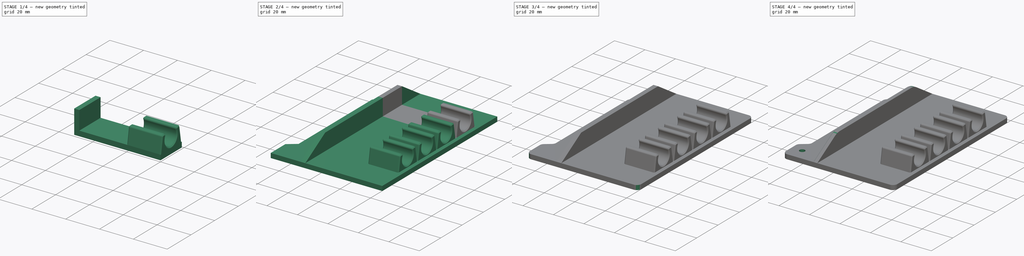
[diagram: build sequence overview — one tinted view per stage of 4, left to right]
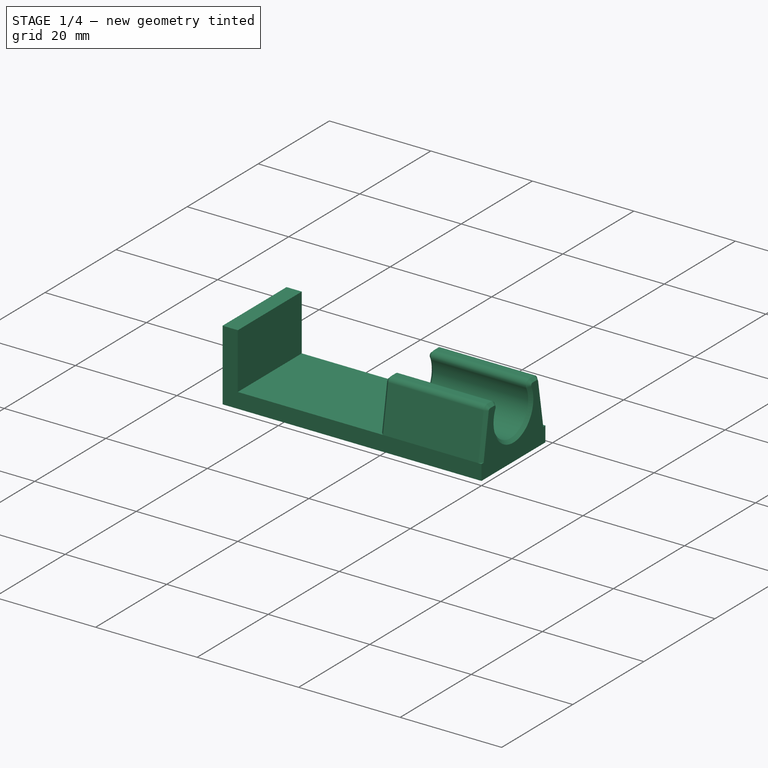
[diagram: stage 1 of 4 — iso view after this stage's code; geometry added in this stage tinted green]
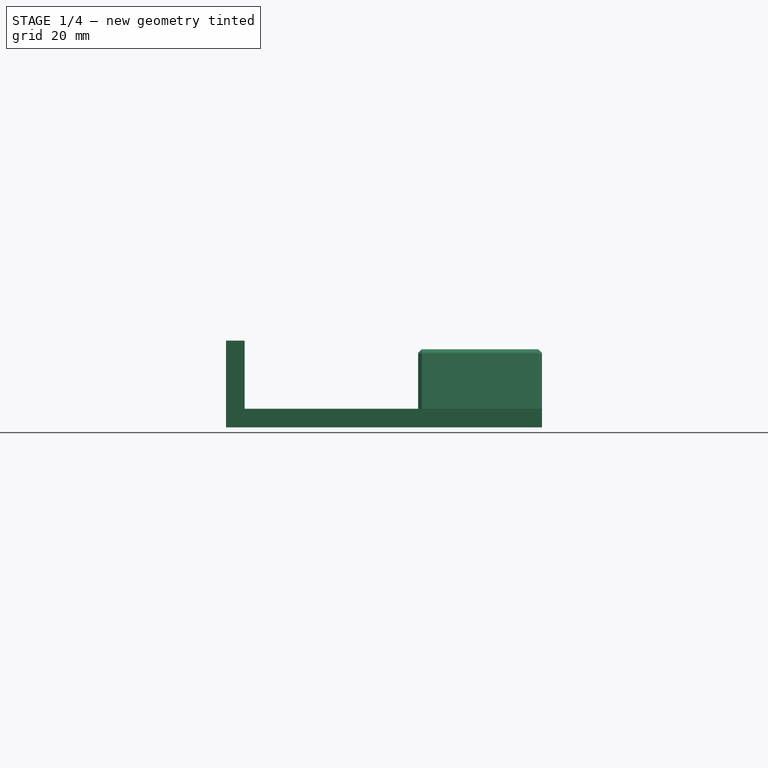
[diagram: stage 1 of 4 — front view after this stage's code; geometry added in this stage tinted green]
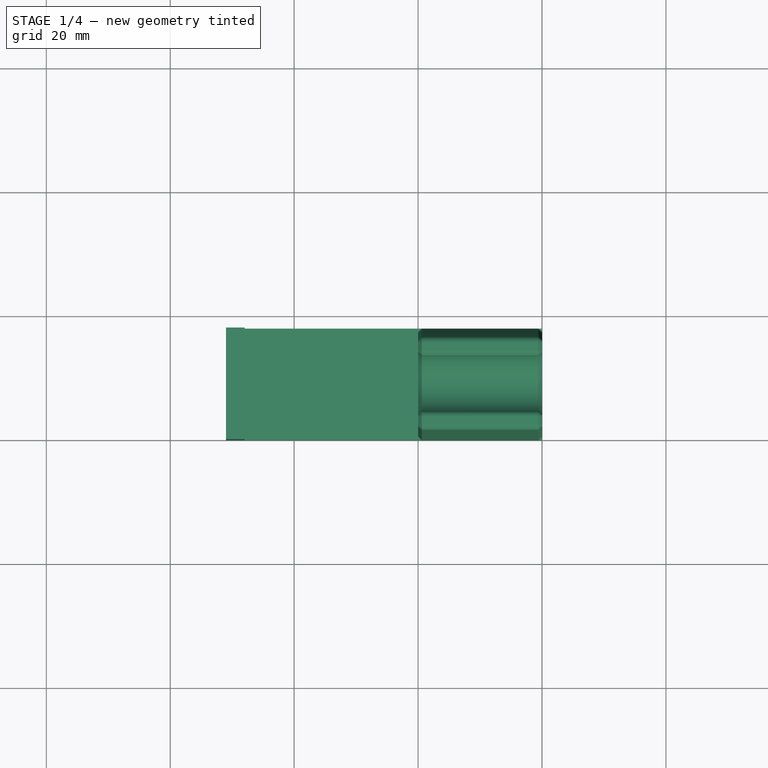
[diagram: stage 1 of 4 — top view after this stage's code; geometry added in this stage tinted green]
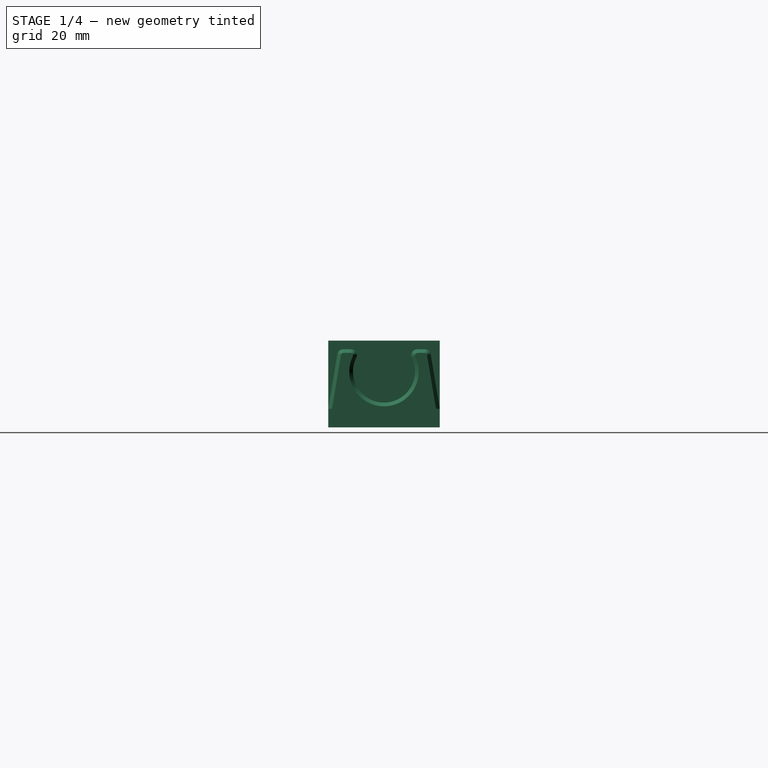
[diagram: stage 1 of 4 — right view after this stage's code; geometry added in this stage tinted green]
FCSTD DOCUMENT  (FreeCAD 0.21R33771 (Git))
Label: SDS_Plus_Clipholder_L_Boxx
License: All rights reserved
LicenseURL: https://en.wikipedia.org/wiki/All_rights_reserved
objects: Sketcher::SketchObject×8, PartDesign::Pad×4, PartDesign::Fillet×3, PartDesign::SubShapeBinder×2, PartDesign::Chamfer×1, PartDesign::LinearPattern×1, PartDesign::Pocket×1, PartDesign::Hole×1, PartDesign::Body×1
note: 32 computed .brp shape members not serialized (recipe doc carries the construction recipe); baked Part::Feature solids carry a one-line shape summary decoded from their .brp

FEATURE [Sketcher::SketchObject] Sketch
  FullyConstrained = true
  MapMode = 5
  Placement = pos=(0,0,0) rot=(0.57735,0.57735,0.57735;2.0944rad)
  Support = -> [YZ_Plane]
  sketch-geometry (15):
    g0: ArcOfCircle CenterX=9 CenterY=6 CenterZ=0 NormalX=0 NormalY=0 NormalZ=1 AngleXU=0 Radius=5 StartAngle=2.69057 EndAngle=6.73421
    g1: LineSegment StartX=3.6 StartY=9.61534 StartZ=0 EndX=2.44735 EndY=9.61534 EndZ=0
    g2: LineSegment StartX=1.46091 StartY=8.77948 StartZ=0 EndX=0 EndY=0 EndZ=0
    g3: LineSegment StartX=0 StartY=0 StartZ=0 EndX=18 EndY=0 EndZ=0
    g4: LineSegment StartX=18 StartY=0 StartZ=0 EndX=16.5391 EndY=8.77948 EndZ=0
    g5: LineSegment StartX=15.5527 StartY=9.61534 StartZ=0 EndX=14.4 EndY=9.61534 EndZ=0
    g6: LineSegment StartX=9 StartY=6 StartZ=0 EndX=9 EndY=1 EndZ=0
    g7: LineSegment StartX=9 StartY=6 StartZ=0 EndX=4 EndY=6 EndZ=0
    g8: ArcOfCircle CenterX=3.6 CenterY=8.61534 CenterZ=0 NormalX=0 NormalY=0 NormalZ=1 AngleXU=0 Radius=1 StartAngle=5.83216 EndAngle=7.85398
    g9: ArcOfCircle CenterX=14.4 CenterY=8.61534 CenterZ=0 NormalX=0 NormalY=0 NormalZ=1 AngleXU=0 Radius=1 StartAngle=1.5708 EndAngle=3.59262
    g10: LineSegment StartX=4.5 StartY=8.17945 StartZ=0 EndX=13.5 EndY=8.17945 EndZ=0
    g11: ArcOfCircle CenterX=15.5527 CenterY=8.61534 CenterZ=0 NormalX=0 NormalY=0 NormalZ=1 AngleXU=0 Radius=1 StartAngle=0.16489 EndAngle=1.5708
    g12: GeomPoint X=16.4 Y=9.61534 Z=0
    g13: ArcOfCircle CenterX=2.44735 CenterY=8.61534 CenterZ=0 NormalX=0 NormalY=0 NormalZ=1 AngleXU=0 Radius=1 StartAngle=1.5708 EndAngle=2.9767
    g14: GeomPoint X=1.6 Y=9.61534 Z=0
  constraints (38):
    c: Diameter(g0) = 10
    c: Horizontal(g1)
    c: Coincident(g2,g-1)
    c: Coincident(g2,g3)
    c: PointOnObject(g3,g-1)
    c: Coincident(g3,g4)
    c: Horizontal(g5)
    c: Coincident(g6,g0)
    c: PointOnObject(g6,g0)
    c: Vertical(g6)
    c: Coincident(g7,g0)
    c: PointOnObject(g7,g0)
    c: Horizontal(g7)
    c: DistanceY(g2,g6) = 1
    c: DistanceX(g2,g7) = 4
    c: Tangent(g1,g8) = -1.5708
    c: Tangent(g0,g8) = 1.5708
    c: Tangent(g0,g9) = 1.5708
    c: Tangent(g5,g9) = -1.5708
    c: Equal(g8,g9)
    c: Coincident(g10,g0)
    c: Coincident(g10,g0)
    c: Horizontal(g10)
    c: DistanceX(g10,g10) = 9
    c: Radius(g8) = 1
    c: DistanceX(g3,g3) = 18
    c: DistanceX(g5,g12) = 2
    c: PointOnObject(g12,g5)
    c: PointOnObject(g12,g4)
    c: Tangent(g5,g11) = -1.5708
    c: Tangent(g4,g11) = -1.5708
    c: PointOnObject(g14,g1)
    c: PointOnObject(g14,g2)
    c: Tangent(g1,g13) = -1.5708
    c: Tangent(g2,g13) = -1.5708
    c: Equal(g11,g13)
    c: Radius(g13) = 1
    c: DistanceX(g14,g1) = 2
FEATURE [PartDesign::Pad] Pad
  Direction = (1,-2e-16,3e-16)
  Length = 20
  Length2 = 10
  Placement = pos=(0,0,0) rot=(0.57735,0.57735,0.57735;2.0944rad)
  Profile = -> Sketch
  ReferenceAxis = -> Sketch [N_Axis]
  Type = 0
FEATURE [PartDesign::Chamfer] Chamfer
  Angle = 45
  Base = -> Pad [Edge25,Edge28,Edge30,Edge4,Edge7,Edge10,Edge13,Edge16,Edge19,Edge18,Edge15,Edge12,Edge9,Edge6,Edge3,Edge29,Edge27,Edge24]
  BaseFeature = -> Pad
  ChamferType = 0
  FlipDirection = false
  Placement = pos=(0,0,0) rot=(0.57735,0.57735,0.57735;2.0944rad)
  Size = 0.6
  Size2 = 1
  SupportTransform = false
  UseAllEdges = false
FEATURE [Sketcher::SketchObject] Sketch001
  FullyConstrained = true
  MapMode = 5
  Placement = pos=(0,0,0) rot=(1,0,0;1.5708rad)
  Support = -> [XZ_Plane]
  sketch-geometry (6):
    g0: LineSegment StartX=20 StartY=-3 StartZ=0 EndX=-31 EndY=-3 EndZ=0
    g1: LineSegment StartX=-28 StartY=0 StartZ=0 EndX=20 EndY=0 EndZ=0
    g2: LineSegment StartX=20 StartY=0 StartZ=0 EndX=20 EndY=-3 EndZ=0
    g3: LineSegment StartX=-31 StartY=-3 StartZ=0 EndX=-31 EndY=11 EndZ=0
    g4: LineSegment StartX=-31 StartY=11 StartZ=0 EndX=-28 EndY=11 EndZ=0
    g5: LineSegment StartX=-28 StartY=11 StartZ=0 EndX=-28 EndY=0 EndZ=0
  constraints (18):
    c: Coincident(g1,g2)
    c: Coincident(g2,g0)
    c: Horizontal(g0)
    c: Horizontal(g1)
    c: Vertical(g2)
    c: PointOnObject(g1,g-1)
    c: DistanceX(g-1,g1) = 20
    c: DistanceX(g1,g-1) = 28
    c: Coincident(g0,g3)
    c: Vertical(g3)
    c: Coincident(g3,g4)
    c: Horizontal(g4)
    c: Coincident(g4,g5)
    c: Coincident(g5,g1)
    c: Vertical(g5)
    c: DistanceX(g4,g4) = 3
    c: DistanceY(g2,g2) = 3
    c: DistanceY(g5,g5) = 11
FEATURE [PartDesign::Pad] Pad001
  BaseFeature = -> Chamfer
  Direction = (0,-1,-2e-16)
  Length = 18
  Length2 = 10
  Placement = pos=(0,0,0) rot=(0.57735,0.57735,0.57735;2.0944rad)
  Profile = -> Sketch001
  ReferenceAxis = -> Sketch001 [N_Axis]
  Reversed = true
  Type = 0
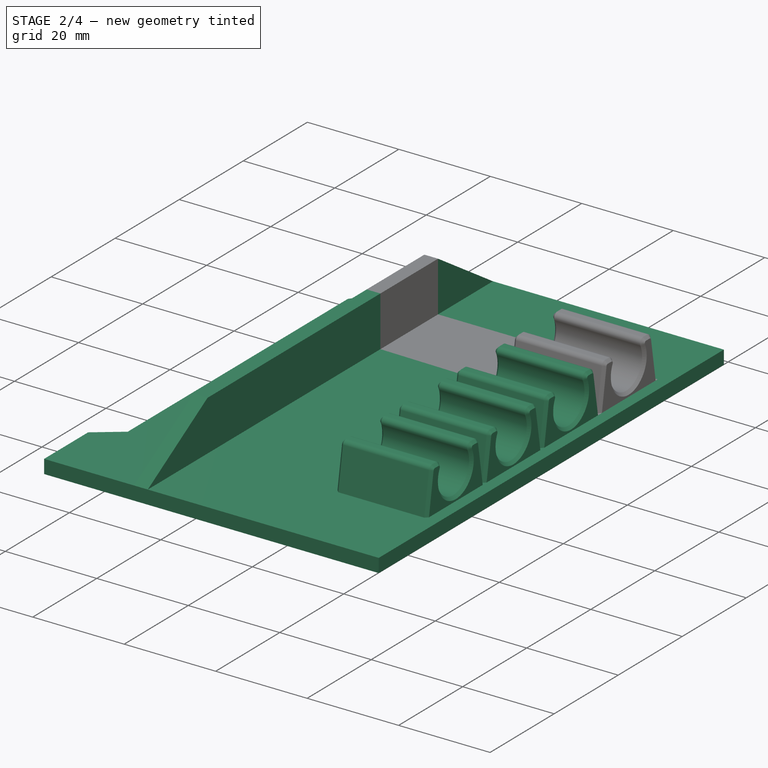
[diagram: stage 2 of 4 — iso view after this stage's code; geometry added in this stage tinted green]
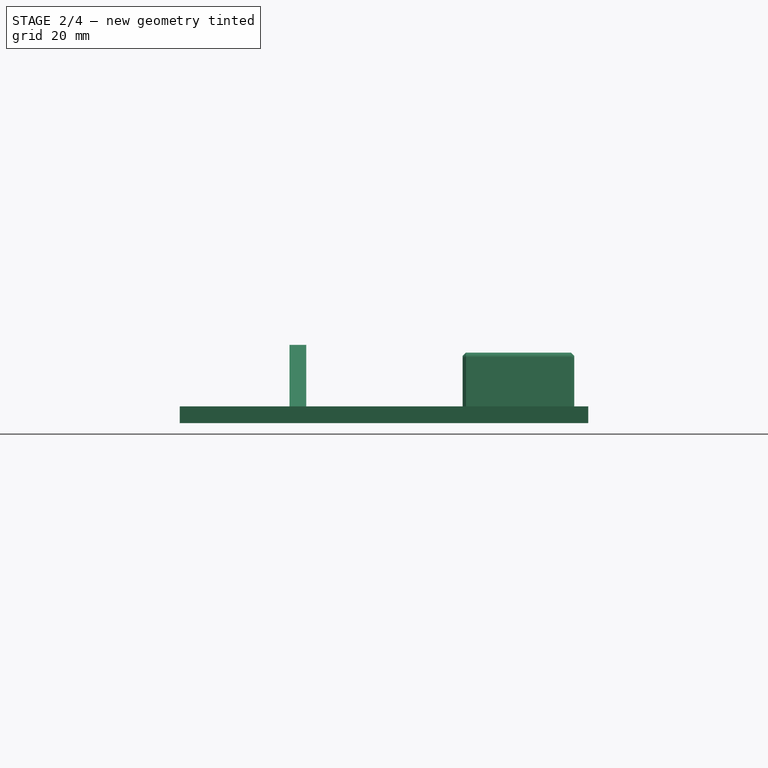
[diagram: stage 2 of 4 — front view after this stage's code; geometry added in this stage tinted green]
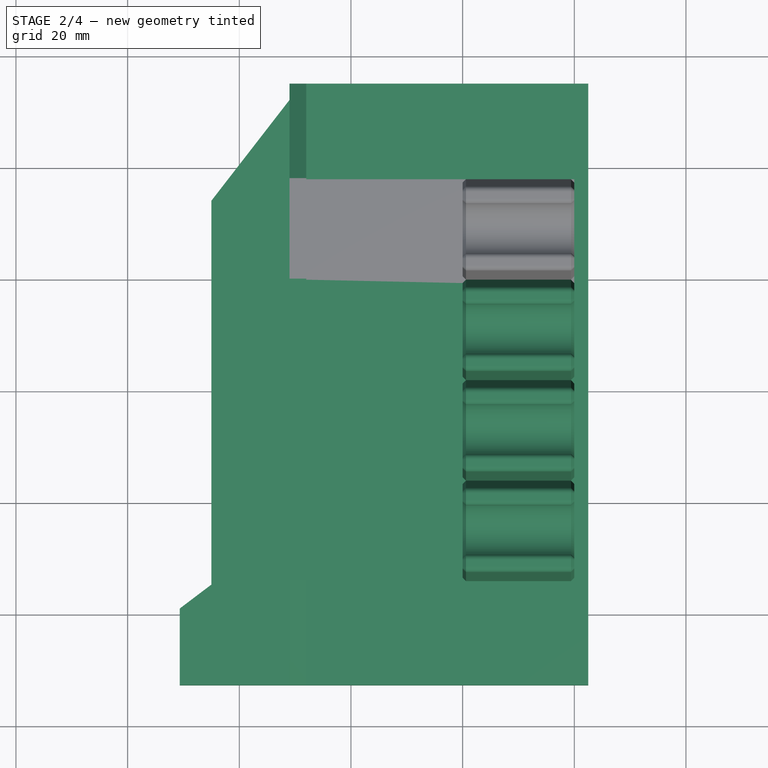
[diagram: stage 2 of 4 — top view after this stage's code; geometry added in this stage tinted green]
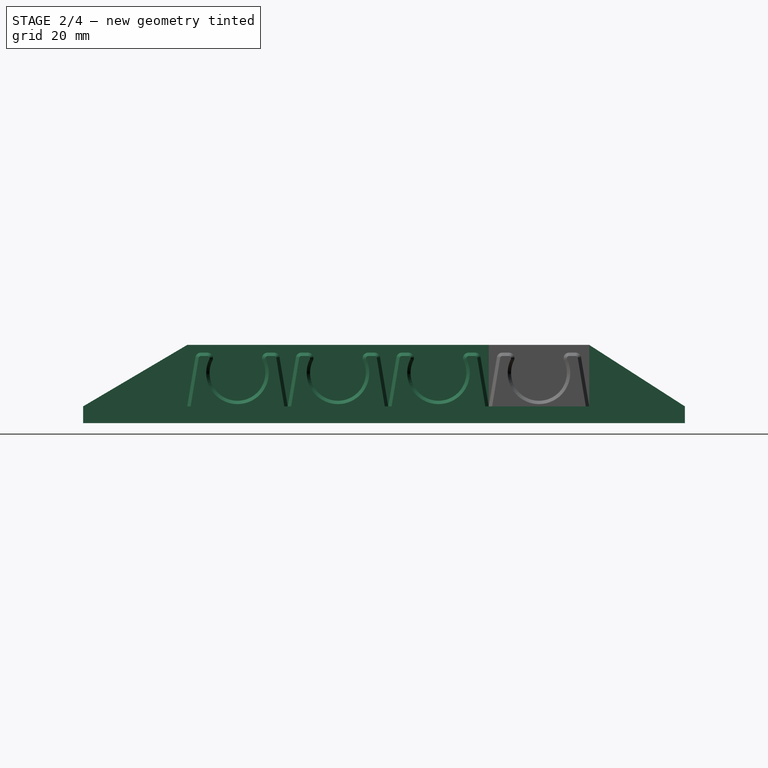
[diagram: stage 2 of 4 — right view after this stage's code; geometry added in this stage tinted green]
FEATURE [PartDesign::LinearPattern] LinearPattern
  BaseFeature = -> Pad001
  Direction = -> Sketch001 [N_Axis]
  Length = 54
  Occurrences = 4
  Originals = -> [Pad001,Pad,Chamfer]
  Placement = pos=(0,0,0) rot=(0.57735,0.57735,0.57735;2.0944rad)
  expr: Length = (Occurrences - 1) * 18 mm
FEATURE [Sketcher::SketchObject] Sketch002  label="SketchCutout"
  FullyConstrained = true
  MapMode = 5
  Support = -> [XY_Plane]
  expr: Constraints[62] = .Constraints.height
  expr: Constraints[63] = .Constraints.width / 2
  sketch-geometry (80):
    g0: LineSegment StartX=0 StartY=0 StartZ=0 EndX=0 EndY=30 EndZ=0
    g1: LineSegment StartX=0 StartY=30 StartZ=0 EndX=7 EndY=30 EndZ=0
    g2: LineSegment StartX=7 StartY=30 StartZ=0 EndX=7 EndY=49 EndZ=0
    g3: LineSegment StartX=7 StartY=49 StartZ=0 EndX=0 EndY=49 EndZ=0
    g4: LineSegment StartX=0 StartY=49 StartZ=0 EndX=0 EndY=123 EndZ=0
    g5: LineSegment StartX=0 StartY=123 StartZ=0 EndX=5 EndY=127 EndZ=0
    g6: LineSegment StartX=5 StartY=127 StartZ=0 EndX=5 EndY=147.5 EndZ=0
    g7: LineSegment StartX=5 StartY=147.5 StartZ=0 EndX=11 EndY=147.5 EndZ=0
    g8: LineSegment StartX=11 StartY=147.5 StartZ=0 EndX=11 EndY=166.5 EndZ=0
    g9: LineSegment StartX=11 StartY=166.5 StartZ=0 EndX=5 EndY=166.5 EndZ=0
    g10: LineSegment StartX=5 StartY=166.5 StartZ=0 EndX=5 EndY=187 EndZ=0
    g11: LineSegment StartX=5 StartY=187 StartZ=0 EndX=0 EndY=191 EndZ=0
    g12: LineSegment StartX=0 StartY=191 StartZ=0 EndX=0 EndY=253 EndZ=0
    g13: LineSegment StartX=0 StartY=253 StartZ=0 EndX=7 EndY=253 EndZ=0
    g14: LineSegment StartX=7 StartY=253 StartZ=0 EndX=7 EndY=272 EndZ=0
    g15: LineSegment StartX=7 StartY=272 StartZ=0 EndX=0 EndY=272 EndZ=0
    g16: LineSegment StartX=0 StartY=272 StartZ=0 EndX=0 EndY=286 EndZ=0
    g17: LineSegment StartX=0 StartY=286 StartZ=0 EndX=20.5 EndY=286 EndZ=0
    g18: LineSegment StartX=20.5 StartY=286 StartZ=0 EndX=20.5 EndY=320 EndZ=0
    g19: LineSegment StartX=5 StartY=166.5 StartZ=0 EndX=5 EndY=147.5 EndZ=0
    g20: LineSegment StartX=0 StartY=0 StartZ=0 EndX=405 EndY=0 EndZ=0
    g21: LineSegment StartX=202.5 StartY=0 StartZ=0 EndX=202.5 EndY=320 EndZ=0
    g22: LineSegment StartX=405 StartY=0 StartZ=0 EndX=405 EndY=30 EndZ=0
    g23: LineSegment StartX=405 StartY=30 StartZ=0 EndX=398 EndY=30 EndZ=0
    g24: LineSegment StartX=398 StartY=30 StartZ=0 EndX=398 EndY=49 EndZ=0
    g25: LineSegment StartX=398 StartY=49 StartZ=0 EndX=405 EndY=49 EndZ=0
    g26: LineSegment StartX=405 StartY=49 StartZ=0 EndX=405 EndY=123 EndZ=0
    g27: LineSegment StartX=405 StartY=123 StartZ=0 EndX=400 EndY=127 EndZ=0
    g28: LineSegment StartX=400 StartY=127 StartZ=0 EndX=400 EndY=147.5 EndZ=0
    g29: LineSegment StartX=400 StartY=147.5 StartZ=0 EndX=394 EndY=147.5 EndZ=0
    g30: LineSegment StartX=394 StartY=147.5 StartZ=0 EndX=394 EndY=166.5 EndZ=0
    g31: LineSegment StartX=394 StartY=166.5 StartZ=0 EndX=400 EndY=166.5 EndZ=0
    g32: LineSegment StartX=400 StartY=166.5 StartZ=0 EndX=400 EndY=187 EndZ=0
    g33: LineSegment StartX=400 StartY=187 StartZ=0 EndX=405 EndY=191 EndZ=0
    g34: LineSegment StartX=405 StartY=191 StartZ=0 EndX=405 EndY=253 EndZ=0
    g35: LineSegment StartX=405 StartY=253 StartZ=0 EndX=398 EndY=253 EndZ=0
    g36: LineSegment StartX=398 StartY=253 StartZ=0 EndX=398 EndY=272 EndZ=0
    g37: LineSegment StartX=398 StartY=272 StartZ=0 EndX=405 EndY=272 EndZ=0
    g38: LineSegment StartX=405 StartY=272 StartZ=0 EndX=405 EndY=286 EndZ=0
    g39: LineSegment StartX=405 StartY=286 StartZ=0 EndX=384.5 EndY=286 EndZ=0
    g40: LineSegment StartX=384.5 StartY=286 StartZ=0 EndX=384.5 EndY=320 EndZ=0
    g41: LineSegment StartX=400 StartY=166.5 StartZ=0 EndX=400 EndY=147.5 EndZ=0
    g42: LineSegment StartX=20.5 StartY=286 StartZ=0 EndX=384.5 EndY=286 EndZ=0
    g43: LineSegment StartX=7 StartY=272 StartZ=0 EndX=398 EndY=272 EndZ=0
    g44: LineSegment StartX=7 StartY=253 StartZ=0 EndX=398 EndY=253 EndZ=0
    g45: LineSegment StartX=0 StartY=191 StartZ=0 EndX=405 EndY=191 EndZ=0
    g46: LineSegment StartX=5 StartY=187 StartZ=0 EndX=400 EndY=187 EndZ=0
    g47: LineSegment StartX=11 StartY=166.5 StartZ=0 EndX=394 EndY=166.5 EndZ=0
    g48: LineSegment StartX=394 StartY=147.5 StartZ=0 EndX=11 EndY=147.5 EndZ=0
    g49: LineSegment StartX=7 StartY=49 StartZ=0 EndX=398 EndY=49 EndZ=0
    g50: LineSegment StartX=398 StartY=30 StartZ=0 EndX=7 EndY=30 EndZ=0
    g51: LineSegment StartX=405 StartY=123 StartZ=0 EndX=0 EndY=123 EndZ=0
    g52: LineSegment StartX=405 StartY=253 StartZ=0 EndX=405 EndY=272 EndZ=0
    g53: LineSegment StartX=20.5 StartY=320 StartZ=0 EndX=95.5 EndY=320 EndZ=0
    g54: LineSegment StartX=95.5 StartY=320 StartZ=0 EndX=95.5 EndY=318 EndZ=0
    g55: LineSegment StartX=95.5 StartY=318 StartZ=0 EndX=309.5 EndY=318 EndZ=0
    g56: LineSegment StartX=309.5 StartY=318 StartZ=0 EndX=309.5 EndY=320 EndZ=0
    g57: LineSegment StartX=309.5 StartY=320 StartZ=0 EndX=384.5 EndY=320 EndZ=0
    g58: LineSegment StartX=62 StartY=113 StartZ=0 EndX=27.5 EndY=113 EndZ=0
    g59: LineSegment StartX=27.5 StartY=113 StartZ=0 EndX=27.5 EndY=223 EndZ=0
    g60: LineSegment StartX=27.5 StartY=223 StartZ=0 EndX=62 EndY=263 EndZ=0
    g61: LineSegment StartX=62 StartY=263 StartZ=0 EndX=202.5 EndY=263 EndZ=0
    g62: LineSegment StartX=62 StartY=113 StartZ=0 EndX=62 EndY=198 EndZ=0
    g63: LineSegment StartX=62 StartY=198 StartZ=0 EndX=77.5 EndY=218 EndZ=0
    g64: LineSegment StartX=77.5 StartY=218 StartZ=0 EndX=145.5 EndY=218 EndZ=0
    g65: LineSegment StartX=145.5 StartY=218 StartZ=0 EndX=145.5 EndY=195 EndZ=0
    g66: LineSegment StartX=145.5 StartY=195 StartZ=0 EndX=202.5 EndY=195 EndZ=0
    g67: LineSegment StartX=62 StartY=263 StartZ=0 EndX=62 EndY=198 EndZ=0
    g68: LineSegment StartX=202.5 StartY=195 StartZ=0 EndX=202.5 EndY=263 EndZ=0
    g69: LineSegment StartX=343 StartY=113 StartZ=0 EndX=377.5 EndY=113 EndZ=0
    g70: LineSegment StartX=377.5 StartY=113 StartZ=0 EndX=377.5 EndY=223 EndZ=0
    g71: LineSegment StartX=377.5 StartY=223 StartZ=0 EndX=343 EndY=263 EndZ=0
    g72: LineSegment StartX=343 StartY=263 StartZ=0 EndX=202.5 EndY=263 EndZ=0
    g73: LineSegment StartX=343 StartY=113 StartZ=0 EndX=343 EndY=198 EndZ=0
    g74: LineSegment StartX=343 StartY=198 StartZ=0 EndX=327.5 EndY=218 EndZ=0
    g75: LineSegment StartX=327.5 StartY=218 StartZ=0 EndX=259.5 EndY=218 EndZ=0
    g76: LineSegment StartX=259.5 StartY=218 StartZ=0 EndX=259.5 EndY=195 EndZ=0
    g77: LineSegment StartX=259.5 StartY=195 StartZ=0 EndX=202.5 EndY=195 EndZ=0
    g78: LineSegment StartX=343 StartY=263 StartZ=0 EndX=343 EndY=198 EndZ=0
    g79: LineSegment StartX=62 StartY=198 StartZ=0 EndX=343 EndY=198 EndZ=0
  constraints (223):
    c: Coincident(g-1,g0)
    c: PointOnObject(g0,g-2)
    c: Coincident(g0,g1)
    c: Horizontal(g1)
    c: Coincident(g1,g2)
    c: Vertical(g2)
    c: Coincident(g2,g3)
    c: PointOnObject(g3,g-2)
    c: Horizontal(g3)
    c: Coincident(g3,g4)
    c: PointOnObject(g4,g-2)
    c: Coincident(g4,g5)
    c: Coincident(g5,g6)
    c: Vertical(g6)
    c: Coincident(g6,g7)
    c: Horizontal(g7)
    c: Coincident(g7,g8)
    c: Vertical(g8)
    c: Coincident(g8,g9)
    c: Horizontal(g9)
    c: Coincident(g9,g10)
    c: Vertical(g10)
    c: Coincident(g10,g11)
    c: PointOnObject(g11,g-2)
    c: Coincident(g11,g12)
    c: PointOnObject(g12,g-2)
    c: Coincident(g12,g13)
    c: Coincident(g13,g14)
    c: Vertical(g14)
    c: Coincident(g14,g15)
    c: PointOnObject(g15,g-2)
    c: Horizontal(g15)
    c: Coincident(g15,g16)
    c: Coincident(g16,g17)
    c: Horizontal(g17)
    c: Coincident(g17,g18)
    c: Vertical(g18)
    c: PointOnObject(g16,g-2)
    c: Horizontal(g13)
    c: DistanceY(g0,g18) = 320  'height'
    c: DistanceY(g18,g18) = 34
    c: DistanceY(g16,g16) = 14
    c: DistanceY(g14,g14) = 19
    c: DistanceY(g12,g12) = 62
    c: DistanceY(g4,g11) = 68
    c: Equal(g10,g6)
    c: Equal(g11,g5)
    c: Coincident(g19,g9)
    c: Coincident(g19,g6)
    c: Vertical(g19)
    c: DistanceY(g8,g8) = 19
    c: DistanceY(g5,g10) = 60
    c: DistanceX(g11,g10) = 5
    c: DistanceX(g9,g9) = 6
    c: DistanceY(g0,g0) = 30
    c: DistanceX(g1,g1) = 7
    c: Equal(g15,g3)
    c: Horizontal(g20)
    c: Coincident(g0,g20)
    c: DistanceX(g20,g20) = 405  'width'
    c: PointOnObject(g21,g20)
    c: Vertical(g21)
    c: DistanceY(g21,g21) = 320
    c: DistanceX(g0,g21) = 202.5
    c: Coincident(g22,g23)
    c: Horizontal(g23)
    c: Coincident(g23,g24)
    c: Vertical(g24)
    c: Coincident(g24,g25)
    c: Horizontal(g25)
    c: Coincident(g25,g26)
    c: Coincident(g26,g27)
    c: Coincident(g27,g28)
    c: Vertical(g28)
    c: Coincident(g28,g29)
    c: Horizontal(g29)
    c: Coincident(g29,g30)
    c: Vertical(g30)
    c: Coincident(g30,g31)
    c: Horizontal(g31)
    c: Coincident(g31,g32)
    c: Vertical(g32)
    c: Coincident(g32,g33)
    c: Coincident(g33,g34)
    c: Coincident(g34,g35)
    c: Coincident(g35,g36)
    c: Vertical(g36)
    c: Coincident(g36,g37)
    c: Horizontal(g37)
    c: Coincident(g37,g38)
    c: Coincident(g38,g39)
    c: Horizontal(g39)
    c: Coincident(g39,g40)
    c: Vertical(g40)
    c: Horizontal(g35)
    c: Equal(g32,g28)
    c: Equal(g33,g27)
    c: Coincident(g41,g31)
    c: Coincident(g41,g28)
    c: Vertical(g41)
    c: Coincident(g42,g17)
    c: Coincident(g42,g39)
    c: Horizontal(g42)
    c: Coincident(g43,g14)
    c: Coincident(g43,g36)
    c: Horizontal(g43)
    c: Coincident(g44,g13)
    c: Coincident(g44,g35)
    c: Horizontal(g44)
    c: Coincident(g45,g11)
    c: Coincident(g45,g33)
    c: Horizontal(g45)
    c: Coincident(g46,g10)
    c: Coincident(g46,g32)
    c: Horizontal(g46)
    c: Coincident(g47,g8)
    c: Coincident(g47,g30)
    c: Horizontal(g47)
    c: Coincident(g48,g29)
    c: Coincident(g48,g7)
    c: Horizontal(g48)
    c: Coincident(g22,g20)
    c: Vertical(g22)
    c: Vertical(g26)
    c: Vertical(g34)
    c: Vertical(g38)
    c: Coincident(g49,g2)
    c: Coincident(g49,g24)
    c: Horizontal(g49)
    c: Coincident(g50,g23)
    c: Coincident(g50,g1)
    c: Horizontal(g50)
    c: Equal(g1,g23)
    c: Equal(g25,g23)
    c: Coincident(g51,g26)
    c: Coincident(g51,g4)
    c: Horizontal(g51)
    c: Equal(g9,g31)
    c: DistanceX(g17,g17) = 20.5
    c: DistanceX(g32,g33) = 5
    c: Coincident(g52,g34)
    c: Coincident(g52,g37)
    c: Vertical(g52)
    c: Equal(g13,g35)
    c: Equal(g17,g39)
    c: Coincident(g18,g53)
    c: Horizontal(g53)
    c: Coincident(g53,g54)
    c: Vertical(g54)
    c: Coincident(g54,g55)
    c: Horizontal(g55)
    c: Coincident(g55,g56)
    c: Vertical(g56)
    c: Coincident(g56,g57)
    c: Coincident(g57,g40)
    c: Horizontal(g57)
    c: Equal(g53,g57)
    c: DistanceX(g53,g53) = 75
    c: DistanceY(g54,g53) = 2
    c: Horizontal(g58)
    c: Coincident(g58,g59)
    c: Vertical(g59)
    c: Coincident(g59,g60)
    c: Coincident(g60,g61)
    c: Horizontal(g61)
    c: Coincident(g58,g62)
    c: Vertical(g62)
    c: Coincident(g62,g63)
    c: Coincident(g63,g64)
    c: Horizontal(g64)
    c: Coincident(g64,g65)
    c: Vertical(g65)
    c: Coincident(g65,g66)
    c: Horizontal(g66)
    c: DistanceX(g58,g58) = 34.5
    c: DistanceY(g59,g59) = 110
    c: DistanceY(g58,g60) = 150
    c: DistanceY(g63,g60) = 45
    c: DistanceY(g62,g62) = 85
    c: DistanceY(g65,g60) = 68
    c: DistanceX(g64,g64) = 68
    c: DistanceX(g59,g64) = 118
    c: Coincident(g67,g60)
    c: Coincident(g67,g62)
    c: Vertical(g67)
    c: Coincident(g68,g66)
    c: Coincident(g68,g61)
    c: Vertical(g68)
    c: Horizontal(g69)
    c: Coincident(g69,g70)
    c: Vertical(g70)
    c: Coincident(g70,g71)
    c: Coincident(g71,g72)
    c: Horizontal(g72)
    c: Coincident(g69,g73)
    c: Vertical(g73)
    c: Coincident(g73,g74)
    c: Coincident(g74,g75)
    c: Horizontal(g75)
    c: Coincident(g75,g76)
    c: Vertical(g76)
    c: Coincident(g76,g77)
    c: Horizontal(g77)
    c: Coincident(g78,g71)
    c: Coincident(g78,g73)
    c: Vertical(g78)
    c: Equal(g66,g77)
    c: Equal(g61,g72)
    c: Equal(g65,g76)
    c: Equal(g75,g64)
    c: Equal(g62,g73)
    c: Equal(g69,g58)
    c: Equal(g70,g59)
    c: Coincident(g61,g72)
    c: Coincident(g66,g77)
    c: Coincident(g79,g62)
    c: Coincident(g79,g73)
    c: Horizontal(g79)
    c: DistanceX(g58,g69) = 350
    c: DistanceY(g0,g58) = 113
    c: DistanceX(g0,g58) = 27.5
    c: Equal(g14,g2)
    c: Equal(g40,g18)
FEATURE [Sketcher::SketchObject] Sketch003  label="SketchHoles"
  FullyConstrained = true
  MapMode = 5
  Support = -> [XY_Plane]
  sketch-geometry (178):
    g0: LineSegment StartX=45 StartY=25 StartZ=0 EndX=45 EndY=55.3109 EndZ=0
    g1: LineSegment StartX=45 StartY=55.3109 StartZ=0 EndX=18.75 EndY=70.4663 EndZ=0
    g2: LineSegment StartX=18.75 StartY=70.4663 StartZ=0 EndX=-7.5 EndY=55.3109 EndZ=0
    g3: LineSegment StartX=-7.5 StartY=55.3109 StartZ=0 EndX=-7.5 EndY=25 EndZ=0
    g4: LineSegment StartX=-7.5 StartY=25 StartZ=0 EndX=18.75 EndY=9.84456 EndZ=0
    g5: LineSegment StartX=18.75 StartY=9.84456 StartZ=0 EndX=45 EndY=25 EndZ=0
    g6: Circle CenterX=18.75 CenterY=40.1554 CenterZ=0 NormalX=0 NormalY=0 NormalZ=1 AngleXU=0 Radius=30.3109
    g7: LineSegment StartX=97.5 StartY=25 StartZ=0 EndX=97.5 EndY=55.3109 EndZ=0
    g8: LineSegment StartX=97.5 StartY=55.3109 StartZ=0 EndX=71.25 EndY=70.4663 EndZ=0
    g9: LineSegment StartX=71.25 StartY=70.4663 StartZ=0 EndX=45 EndY=55.3109 EndZ=0
    g10: LineSegment StartX=45 StartY=55.3109 StartZ=0 EndX=45 EndY=25 EndZ=0
    g11: LineSegment StartX=45 StartY=25 StartZ=0 EndX=71.25 EndY=9.84456 EndZ=0
    g12: LineSegment StartX=71.25 StartY=9.84456 StartZ=0 EndX=97.5 EndY=25 EndZ=0
    g13: Circle CenterX=71.25 CenterY=40.1554 CenterZ=0 NormalX=0 NormalY=0 NormalZ=1 AngleXU=0 Radius=30.3109
    g14: LineSegment StartX=150 StartY=25 StartZ=0 EndX=150 EndY=55.3109 EndZ=0
    g15: LineSegment StartX=150 StartY=55.3109 StartZ=0 EndX=123.75 EndY=70.4663 EndZ=0
    g16: LineSegment StartX=123.75 StartY=70.4663 StartZ=0 EndX=97.5 EndY=55.3109 EndZ=0
    g17: LineSegment StartX=97.5 StartY=55.3109 StartZ=0 EndX=97.5 EndY=25 EndZ=0
    g18: LineSegment StartX=97.5 StartY=25 StartZ=0 EndX=123.75 EndY=9.84456 EndZ=0
    g19: LineSegment StartX=123.75 StartY=9.84456 StartZ=0 EndX=150 EndY=25 EndZ=0
    g20: Circle CenterX=123.75 CenterY=40.1554 CenterZ=0 NormalX=0 NormalY=0 NormalZ=1 AngleXU=0 Radius=30.3109
    g21: LineSegment StartX=202.5 StartY=25 StartZ=0 EndX=202.5 EndY=55.3109 EndZ=0
    g22: LineSegment StartX=202.5 StartY=55.3109 StartZ=0 EndX=176.25 EndY=70.4663 EndZ=0
    g23: LineSegment StartX=176.25 StartY=70.4663 StartZ=0 EndX=150 EndY=55.3109 EndZ=0
    g24: LineSegment StartX=150 StartY=55.3109 StartZ=0 EndX=150 EndY=25 EndZ=0
    g25: LineSegment StartX=150 StartY=25 StartZ=0 EndX=176.25 EndY=9.84456 EndZ=0
    g26: LineSegment StartX=176.25 StartY=9.84456 StartZ=0 EndX=202.5 EndY=25 EndZ=0
    g27: Circle CenterX=176.25 CenterY=40.1554 CenterZ=0 NormalX=0 NormalY=0 NormalZ=1 AngleXU=0 Radius=30.3109
    g28: LineSegment StartX=255 StartY=25 StartZ=0 EndX=255 EndY=55.3109 EndZ=0
    g29: LineSegment StartX=255 StartY=55.3109 StartZ=0 EndX=228.75 EndY=70.4663 EndZ=0
    g30: LineSegment StartX=228.75 StartY=70.4663 StartZ=0 EndX=202.5 EndY=55.3109 EndZ=0
    g31: LineSegment StartX=202.5 StartY=55.3109 StartZ=0 EndX=202.5 EndY=25 EndZ=0
    g32: LineSegment StartX=202.5 StartY=25 StartZ=0 EndX=228.75 EndY=9.84456 EndZ=0
    g33: LineSegment StartX=228.75 StartY=9.84456 StartZ=0 EndX=255 EndY=25 EndZ=0
    g34: Circle CenterX=228.75 CenterY=40.1554 CenterZ=0 NormalX=0 NormalY=0 NormalZ=1 AngleXU=0 Radius=30.3109
    g35: LineSegment StartX=307.5 StartY=25 StartZ=0 EndX=307.5 EndY=55.3109 EndZ=0
    g36: LineSegment StartX=307.5 StartY=55.3109 StartZ=0 EndX=281.25 EndY=70.4663 EndZ=0
    g37: LineSegment StartX=281.25 StartY=70.4663 StartZ=0 EndX=255 EndY=55.3109 EndZ=0
    g38: LineSegment StartX=255 StartY=55.3109 StartZ=0 EndX=255 EndY=25 EndZ=0
    g39: LineSegment StartX=255 StartY=25 StartZ=0 EndX=281.25 EndY=9.84456 EndZ=0
    g40: LineSegment StartX=281.25 StartY=9.84456 StartZ=0 EndX=307.5 EndY=25 EndZ=0
    g41: Circle CenterX=281.25 CenterY=40.1554 CenterZ=0 NormalX=0 NormalY=0 NormalZ=1 AngleXU=0 Radius=30.3109
    g42: LineSegment StartX=360 StartY=25 StartZ=0 EndX=360 EndY=55.3109 EndZ=0
    g43: LineSegment StartX=360 StartY=55.3109 StartZ=0 EndX=333.75 EndY=70.4663 EndZ=0
    g44: LineSegment StartX=333.75 StartY=70.4663 StartZ=0 EndX=307.5 EndY=55.3109 EndZ=0
    g45: LineSegment StartX=307.5 StartY=55.3109 StartZ=0 EndX=307.5 EndY=25 EndZ=0
    g46: LineSegment StartX=307.5 StartY=25 StartZ=0 EndX=333.75 EndY=9.84456 EndZ=0
    g47: LineSegment StartX=333.75 StartY=9.84456 StartZ=0 EndX=360 EndY=25 EndZ=0
    g48: Circle CenterX=333.75 CenterY=40.1554 CenterZ=0 NormalX=0 NormalY=0 NormalZ=1 AngleXU=0 Radius=30.3109
    g49: LineSegment StartX=412.5 StartY=25 StartZ=0 EndX=412.5 EndY=55.3109 EndZ=0
    g50: LineSegment StartX=412.5 StartY=55.3109 StartZ=0 EndX=386.25 EndY=70.4663 EndZ=0
    g51: LineSegment StartX=386.25 StartY=70.4663 StartZ=0 EndX=360 EndY=55.3109 EndZ=0
    g52: LineSegment StartX=360 StartY=55.3109 StartZ=0 EndX=360 EndY=25 EndZ=0
    g53: LineSegment StartX=360 StartY=25 StartZ=0 EndX=386.25 EndY=9.84456 EndZ=0
    g54: LineSegment StartX=386.25 StartY=9.84456 StartZ=0 EndX=412.5 EndY=25 EndZ=0
    g55: Circle CenterX=386.25 CenterY=40.1554 CenterZ=0 NormalX=0 NormalY=0 NormalZ=1 AngleXU=0 Radius=30.3109
    g56: LineSegment StartX=71.25 StartY=70.4663 StartZ=0 EndX=71.25 EndY=100.777 EndZ=0
    g57: LineSegment StartX=71.25 StartY=100.777 StartZ=0 EndX=45 EndY=115.933 EndZ=0
    g58: LineSegment StartX=45 StartY=115.933 StartZ=0 EndX=18.75 EndY=100.777 EndZ=0
    g59: LineSegment StartX=18.75 StartY=100.777 StartZ=0 EndX=18.75 EndY=70.4663 EndZ=0
    g60: LineSegment StartX=18.75 StartY=70.4663 StartZ=0 EndX=45 EndY=55.3109 EndZ=0
    g61: LineSegment StartX=45 StartY=55.3109 StartZ=0 EndX=71.25 EndY=70.4663 EndZ=0
    g62: Circle CenterX=45 CenterY=85.6218 CenterZ=0 NormalX=0 NormalY=0 NormalZ=1 AngleXU=0 Radius=30.3109
    g63: LineSegment StartX=0 StartY=0 StartZ=0 EndX=18.75 EndY=9.84456 EndZ=0
    g64: LineSegment StartX=405 StartY=0 StartZ=0 EndX=386.25 EndY=9.84456 EndZ=0
    g65: LineSegment StartX=386.25 StartY=70.4663 StartZ=0 EndX=386.25 EndY=100.777 EndZ=0
    g66: LineSegment StartX=386.25 StartY=100.777 StartZ=0 EndX=360 EndY=115.933 EndZ=0
    g67: LineSegment StartX=360 StartY=115.933 StartZ=0 EndX=333.75 EndY=100.777 EndZ=0
    g68: LineSegment StartX=333.75 StartY=100.777 StartZ=0 EndX=333.75 EndY=70.4663 EndZ=0
    g69: LineSegment StartX=333.75 StartY=70.4663 StartZ=0 EndX=360 EndY=55.3109 EndZ=0
    g70: LineSegment StartX=360 StartY=55.3109 StartZ=0 EndX=386.25 EndY=70.4663 EndZ=0
    g71: Circle CenterX=360 CenterY=85.6218 CenterZ=0 NormalX=0 NormalY=0 NormalZ=1 AngleXU=0 Radius=30.3109
    g72: LineSegment StartX=228.75 StartY=70.4663 StartZ=0 EndX=228.75 EndY=100.777 EndZ=0
    g73: LineSegment StartX=228.75 StartY=100.777 StartZ=0 EndX=202.5 EndY=115.933 EndZ=0
    g74: LineSegment StartX=202.5 StartY=115.933 StartZ=0 EndX=176.25 EndY=100.777 EndZ=0
    g75: LineSegment StartX=176.25 StartY=100.777 StartZ=0 EndX=176.25 EndY=70.4663 EndZ=0
    g76: LineSegment StartX=176.25 StartY=70.4663 StartZ=0 EndX=202.5 EndY=55.3109 EndZ=0
    g77: LineSegment StartX=202.5 StartY=55.3109 StartZ=0 EndX=228.75 EndY=70.4663 EndZ=0
    g78: Circle CenterX=202.5 CenterY=85.6218 CenterZ=0 NormalX=0 NormalY=0 NormalZ=1 AngleXU=0 Radius=30.3109
    g79: Circle CenterX=45 CenterY=25 CenterZ=0 NormalX=0 NormalY=0 NormalZ=1 AngleXU=0 Radius=5
    g80: Circle CenterX=71.25 CenterY=100.777 CenterZ=0 NormalX=0 NormalY=0 NormalZ=1 AngleXU=0 Radius=5
    g81: Circle CenterX=202.5 CenterY=115.933 CenterZ=0 NormalX=0 NormalY=0 NormalZ=1 AngleXU=0 Radius=5
    g82: Circle CenterX=202.5 CenterY=25 CenterZ=0 NormalX=0 NormalY=0 NormalZ=1 AngleXU=0 Radius=3e-15
    g83: Circle CenterX=202.5 CenterY=25 CenterZ=0 NormalX=0 NormalY=0 NormalZ=1 AngleXU=0 Radius=5
    g84: Circle CenterX=333.75 CenterY=100.777 CenterZ=0 NormalX=0 NormalY=0 NormalZ=1 AngleXU=0 Radius=5
    g85: Circle CenterX=360 CenterY=25 CenterZ=0 NormalX=0 NormalY=0 NormalZ=1 AngleXU=0 Radius=5
    g86: LineSegment StartX=202.5 StartY=146.244 StartZ=0 EndX=176.25 EndY=161.399 EndZ=0
    g87: LineSegment StartX=176.25 StartY=161.399 StartZ=0 EndX=150 EndY=146.244 EndZ=0
    g88: LineSegment StartX=150 StartY=146.244 StartZ=0 EndX=150 EndY=115.933 EndZ=0
    g89: LineSegment StartX=150 StartY=115.933 StartZ=0 EndX=176.25 EndY=100.777 EndZ=0
    g90: LineSegment StartX=176.25 StartY=100.777 StartZ=0 EndX=202.5 EndY=115.933 EndZ=0
    g91: LineSegment StartX=202.5 StartY=115.933 StartZ=0 EndX=202.5 EndY=146.244 EndZ=0
    g92: Circle CenterX=176.25 CenterY=131.088 CenterZ=0 NormalX=0 NormalY=0 NormalZ=1 AngleXU=0 Radius=30.3109
    g93: LineSegment StartX=176.25 StartY=161.399 StartZ=0 EndX=176.25 EndY=191.71 EndZ=0
    g94: LineSegment StartX=176.25 StartY=191.71 StartZ=0 EndX=150 EndY=206.865 EndZ=0
    g95: LineSegment StartX=150 StartY=206.865 StartZ=0 EndX=123.75 EndY=191.71 EndZ=0
    g96: LineSegment StartX=123.75 StartY=191.71 StartZ=0 EndX=123.75 EndY=161.399 EndZ=0
    g97: LineSegment StartX=123.75 StartY=161.399 StartZ=0 EndX=150 EndY=146.244 EndZ=0
    g98: LineSegment StartX=150 StartY=146.244 StartZ=0 EndX=176.25 EndY=161.399 EndZ=0
    g99: Circle CenterX=150 CenterY=176.554 CenterZ=0 NormalX=0 NormalY=0 NormalZ=1 AngleXU=0 Radius=30.3109
    g100: Circle CenterX=123.75 CenterY=191.71 CenterZ=0 NormalX=0 NormalY=0 NormalZ=1 AngleXU=0 Radius=5
    g101: LineSegment StartX=255 StartY=115.933 StartZ=0 EndX=255 EndY=146.244 EndZ=0
    g102: LineSegment StartX=255 StartY=146.244 StartZ=0 EndX=228.75 EndY=161.399 EndZ=0
    g103: LineSegment StartX=228.75 StartY=161.399 StartZ=0 EndX=202.5 EndY=146.244 EndZ=0
    g104: LineSegment StartX=202.5 StartY=146.244 StartZ=0 EndX=202.5 EndY=115.933 EndZ=0
    g105: LineSegment StartX=202.5 StartY=115.933 StartZ=0 EndX=228.75 EndY=100.777 EndZ=0
    g106: LineSegment StartX=228.75 StartY=100.777 StartZ=0 EndX=255 EndY=115.933 EndZ=0
    g107: Circle CenterX=228.75 CenterY=131.088 CenterZ=0 NormalX=0 NormalY=0 NormalZ=1 AngleXU=0 Radius=30.3109
    g108: LineSegment StartX=281.25 StartY=161.399 StartZ=0 EndX=281.25 EndY=191.71 EndZ=0
    g109: LineSegment StartX=281.25 StartY=191.71 StartZ=0 EndX=255 EndY=206.865 EndZ=0
    g110: LineSegment StartX=255 StartY=206.865 StartZ=0 EndX=228.75 EndY=191.71 EndZ=0
    g111: LineSegment StartX=228.75 StartY=191.71 StartZ=0 EndX=228.75 EndY=161.399 EndZ=0
    g112: LineSegment StartX=228.75 StartY=161.399 StartZ=0 EndX=255 EndY=146.244 EndZ=0
    g113: LineSegment StartX=255 StartY=146.244 StartZ=0 EndX=281.25 EndY=161.399 EndZ=0
    g114: Circle CenterX=255 CenterY=176.554 CenterZ=0 NormalX=0 NormalY=0 NormalZ=1 AngleXU=0 Radius=30.3109
    g115: Circle CenterX=281.25 CenterY=191.71 CenterZ=0 NormalX=0 NormalY=0 NormalZ=1 AngleXU=0 Radius=5
    g116: LineSegment StartX=97.5 StartY=115.933 StartZ=0 EndX=97.5 EndY=146.244 EndZ=0
    g117: LineSegment StartX=97.5 StartY=146.244 StartZ=0 EndX=71.25 EndY=161.399 EndZ=0
    g118: LineSegment StartX=71.25 StartY=161.399 StartZ=0 EndX=45 EndY=146.244 EndZ=0
    g119: LineSegment StartX=45 StartY=146.244 StartZ=0 EndX=45 EndY=115.933 EndZ=0
    g120: LineSegment StartX=45 StartY=115.933 StartZ=0 EndX=71.25 EndY=100.777 EndZ=0
    g121: LineSegment StartX=71.25 StartY=100.777 StartZ=0 EndX=97.5 EndY=115.933 EndZ=0
    g122: Circle CenterX=71.25 CenterY=131.088 CenterZ=0 NormalX=0 NormalY=0 NormalZ=1 AngleXU=0 Radius=30.3109
    g123: LineSegment StartX=71.25 StartY=161.399 StartZ=0 EndX=71.25 EndY=191.71 EndZ=0
    g124: LineSegment StartX=71.25 StartY=191.71 StartZ=0 EndX=45 EndY=206.865 EndZ=0
    g125: LineSegment StartX=45 StartY=206.865 StartZ=0 EndX=18.75 EndY=191.71 EndZ=0
    g126: LineSegment StartX=18.75 StartY=191.71 StartZ=0 EndX=18.75 EndY=161.399 EndZ=0
    g127: LineSegment StartX=18.75 StartY=161.399 StartZ=0 EndX=45 EndY=146.244 EndZ=0
    g128: LineSegment StartX=45 StartY=146.244 StartZ=0 EndX=71.25 EndY=161.399 EndZ=0
    g129: Circle CenterX=45 CenterY=176.554 CenterZ=0 NormalX=0 NormalY=0 NormalZ=1 AngleXU=0 Radius=30.3109
    g130: LineSegment StartX=97.5 StartY=206.865 StartZ=0 EndX=97.5 EndY=237.176 EndZ=0
    g131: LineSegment StartX=97.5 StartY=237.176 StartZ=0 EndX=71.25 EndY=252.332 EndZ=0
    g132: LineSegment StartX=71.25 StartY=252.332 StartZ=0 EndX=45 EndY=237.176 EndZ=0
    g133: LineSegment StartX=45 StartY=237.176 StartZ=0 EndX=45 EndY=206.865 EndZ=0
    g134: LineSegment StartX=45 StartY=206.865 StartZ=0 EndX=71.25 EndY=191.71 EndZ=0
    g135: LineSegment StartX=71.25 StartY=191.71 StartZ=0 EndX=97.5 EndY=206.865 EndZ=0
    g136: Circle CenterX=71.25 CenterY=222.021 CenterZ=0 NormalX=0 NormalY=0 NormalZ=1 AngleXU=0 Radius=30.3109
    g137: LineSegment StartX=71.25 StartY=252.332 StartZ=0 EndX=71.25 EndY=282.643 EndZ=0
    g138: LineSegment StartX=71.25 StartY=282.643 StartZ=0 EndX=45 EndY=297.798 EndZ=0
    g139: LineSegment StartX=45 StartY=297.798 StartZ=0 EndX=18.75 EndY=282.643 EndZ=0
    g140: LineSegment StartX=18.75 StartY=282.643 StartZ=0 EndX=18.75 EndY=252.332 EndZ=0
    g141: LineSegment StartX=18.75 StartY=252.332 StartZ=0 EndX=45 EndY=237.176 EndZ=0
    g142: LineSegment StartX=45 StartY=237.176 StartZ=0 EndX=71.25 EndY=252.332 EndZ=0
    g143: Circle CenterX=45 CenterY=267.487 CenterZ=0 NormalX=0 NormalY=0 NormalZ=1 AngleXU=0 Radius=30.3109
    g144: Circle CenterX=45 CenterY=297.798 CenterZ=0 NormalX=0 NormalY=0 NormalZ=1 AngleXU=0 Radius=5
    g145: LineSegment StartX=360 StartY=115.933 StartZ=0 EndX=360 EndY=146.244 EndZ=0
    g146: LineSegment StartX=360 StartY=146.244 StartZ=0 EndX=333.75 EndY=161.399 EndZ=0
    g147: LineSegment StartX=333.75 StartY=161.399 StartZ=0 EndX=307.5 EndY=146.244 EndZ=0
    g148: LineSegment StartX=307.5 StartY=146.244 StartZ=0 EndX=307.5 EndY=115.933 EndZ=0
    g149: LineSegment StartX=307.5 StartY=115.933 StartZ=0 EndX=333.75 EndY=100.777 EndZ=0
    g150: LineSegment StartX=333.75 StartY=100.777 StartZ=0 EndX=360 EndY=115.933 EndZ=0
    g151: Circle CenterX=333.75 CenterY=131.088 CenterZ=0 NormalX=0 NormalY=0 NormalZ=1 AngleXU=0 Radius=30.3109
    g152: LineSegment StartX=360 StartY=146.244 StartZ=0 EndX=386.25 EndY=161.399 EndZ=0
    g153: LineSegment StartX=386.25 StartY=161.399 StartZ=0 EndX=386.25 EndY=191.71 EndZ=0
    g154: LineSegment StartX=386.25 StartY=191.71 StartZ=0 EndX=360 EndY=206.865 EndZ=0
    g155: LineSegment StartX=360 StartY=206.865 StartZ=0 EndX=333.75 EndY=191.71 EndZ=0
    g156: LineSegment StartX=333.75 StartY=191.71 StartZ=0 EndX=333.75 EndY=161.399 EndZ=0
    g157: LineSegment StartX=333.75 StartY=161.399 StartZ=0 EndX=360 EndY=146.244 EndZ=0
    g158: Circle CenterX=360 CenterY=176.554 CenterZ=0 NormalX=0 NormalY=0 NormalZ=1 AngleXU=0 Radius=30.3109
    g159: LineSegment StartX=360 StartY=206.865 StartZ=0 EndX=360 EndY=237.176 EndZ=0
    g160: LineSegment StartX=360 StartY=237.176 StartZ=0 EndX=333.75 EndY=252.332 EndZ=0
    g161: LineSegment StartX=333.75 StartY=252.332 StartZ=0 EndX=307.5 EndY=237.176 EndZ=0
    g162: LineSegment StartX=307.5 StartY=237.176 StartZ=0 EndX=307.5 EndY=206.865 EndZ=0
    g163: LineSegment StartX=307.5 StartY=206.865 StartZ=0 EndX=333.75 EndY=191.71 EndZ=0
    g164: LineSegment StartX=333.75 StartY=191.71 StartZ=0 EndX=360 EndY=206.865 EndZ=0
    g165: Circle CenterX=333.75 CenterY=222.021 CenterZ=0 NormalX=0 NormalY=0 NormalZ=1 AngleXU=0 Radius=30.3109
    g166: LineSegment StartX=333.75 StartY=252.332 StartZ=0 EndX=360 EndY=237.176 EndZ=0
    g167: LineSegment StartX=360 StartY=237.176 StartZ=0 EndX=386.25 EndY=252.332 EndZ=0
    g168: LineSegment StartX=386.25 StartY=252.332 StartZ=0 EndX=386.25 EndY=282.643 EndZ=0
    g169: LineSegment StartX=386.25 StartY=282.643 StartZ=0 EndX=360 EndY=297.798 EndZ=0
    g170: LineSegment StartX=360 StartY=297.798 StartZ=0 EndX=333.75 EndY=282.643 EndZ=0
    g171: LineSegment StartX=333.75 StartY=282.643 StartZ=0 EndX=333.75 EndY=252.332 EndZ=0
    g172: Circle CenterX=360 CenterY=267.487 CenterZ=0 NormalX=0 NormalY=0 NormalZ=1 AngleXU=0 Radius=30.3109
    g173: Circle CenterX=360 CenterY=297.798 CenterZ=0 NormalX=0 NormalY=0 NormalZ=1 AngleXU=0 Radius=5
    g174: LineSegment StartX=45 StartY=297.798 StartZ=0 EndX=202.5 EndY=297.798 EndZ=0
    g175: LineSegment StartX=360 StartY=297.798 StartZ=0 EndX=202.5 EndY=297.798 EndZ=0
    g176: LineSegment StartX=202.5 StartY=297.798 StartZ=0 EndX=202.5 EndY=115.933 EndZ=0
    g177: Circle CenterX=202.5 CenterY=297.798 CenterZ=0 NormalX=0 NormalY=0 NormalZ=1 AngleXU=0 Radius=5
  constraints (394):
    c: Coincident(g0,g1)
    c: Coincident(g1,g2)
    c: Coincident(g2,g3)
    c: Coincident(g3,g4)
    c: Coincident(g4,g5)
    c: Coincident(g5,g0)
    c: Equal(g0, g1-g5) x5
    c: PointOnObject(g0,g6)
    c: PointOnObject(g1,g6)
    c: PointOnObject(g2,g6)
    c: PointOnObject(g3,g6)
    c: PointOnObject(g4,g6)
    c: PointOnObject(g5,g6)
    c: Vertical(g3)
    c: Coincident(g7,g8)
    c: Coincident(g8,g9)
    c: Coincident(g9,g10)
    c: Coincident(g10,g11)
    c: Coincident(g11,g12)
    c: Coincident(g12,g7)
    c: Equal(g7, g8-g12) x5
    c: PointOnObject(g7,g13)
    c: PointOnObject(g8,g13)
    c: PointOnObject(g9,g13)
    c: PointOnObject(g10,g13)
    c: PointOnObject(g11,g13)
    c: PointOnObject(g12,g13)
    c: Vertical(g10)
    c: Coincident(g14,g15)
    c: Coincident(g15,g16)
    c: Coincident(g16,g17)
    c: Coincident(g17,g18)
    c: Coincident(g18,g19)
    c: Coincident(g19,g14)
    c: Equal(g14, g15-g19) x5
    c: PointOnObject(g14,g20)
    c: PointOnObject(g15,g20)
    c: PointOnObject(g16,g20)
    c: PointOnObject(g17,g20)
    c: PointOnObject(g18,g20)
    c: PointOnObject(g19,g20)
    c: Vertical(g17)
    c: Coincident(g21,g22)
    c: Coincident(g22,g23)
    c: Coincident(g23,g24)
    c: Coincident(g24,g25)
    c: Coincident(g25,g26)
    c: Coincident(g26,g21)
    c: Equal(g21, g22-g26) x5
    c: PointOnObject(g21,g27)
    c: PointOnObject(g22,g27)
    c: PointOnObject(g23,g27)
    c: PointOnObject(g24,g27)
    c: PointOnObject(g25,g27)
    c: PointOnObject(g26,g27)
    c: Vertical(g24)
    c: Coincident(g28,g29)
    c: Coincident(g29,g30)
    c: Coincident(g30,g31)
    c: Coincident(g31,g32)
    c: Coincident(g32,g33)
    c: Coincident(g33,g28)
    c: Equal(g28, g29-g33) x5
    c: PointOnObject(g28,g34)
    c: PointOnObject(g29,g34)
    c: PointOnObject(g30,g34)
    c: PointOnObject(g31,g34)
    c: PointOnObject(g32,g34)
    c: PointOnObject(g33,g34)
    c: Vertical(g31)
    c: Coincident(g35,g36)
    c: Coincident(g36,g37)
    c: Coincident(g37,g38)
    c: Coincident(g38,g39)
    c: Coincident(g39,g40)
    c: Coincident(g40,g35)
    c: Equal(g35, g36-g40) x5
    c: PointOnObject(g35,g41)
    c: PointOnObject(g36,g41)
    c: PointOnObject(g37,g41)
    c: PointOnObject(g38,g41)
    c: PointOnObject(g39,g41)
    c: PointOnObject(g40,g41)
    c: Vertical(g38)
    c: Coincident(g42,g43)
    c: Coincident(g43,g44)
    c: Coincident(g44,g45)
    c: Coincident(g45,g46)
    c: Coincident(g46,g47)
    c: Coincident(g47,g42)
    c: Equal(g42, g43-g47) x5
    c: PointOnObject(g42,g48)
    c: PointOnObject(g43,g48)
    c: PointOnObject(g44,g48)
    c: PointOnObject(g45,g48)
    c: PointOnObject(g46,g48)
    c: PointOnObject(g47,g48)
    c: Vertical(g45)
    c: Coincident(g49,g50)
    c: Coincident(g50,g51)
    c: Coincident(g51,g52)
    c: Coincident(g52,g53)
    c: Coincident(g53,g54)
    c: Coincident(g54,g49)
    c: Equal(g49, g50-g54) x5
    c: PointOnObject(g49,g55)
    c: PointOnObject(g50,g55)
    c: PointOnObject(g51,g55)
    c: PointOnObject(g52,g55)
    c: PointOnObject(g53,g55)
    c: PointOnObject(g54,g55)
    c: Vertical(g52)
    c: Coincident(g9,g0)
    c: Equal(g4,g11)
    c: Equal(g4,g18)
    c: Equal(g4,g25)
    c: Equal(g4,g32)
    c: Equal(g4,g39)
    c: Equal(g4,g46)
    c: Equal(g4,g53)
    c: Coincident(g51,g42)
    c: Coincident(g16,g7)
    c: Coincident(g23,g14)
    c: Coincident(g35,g44)
    c: Coincident(g37,g28)
    c: Coincident(g30,g21)
    c: Coincident(g56,g57)
    c: Coincident(g57,g58)
    c: Coincident(g58,g59)
    c: Coincident(g59,g60)
    c: Coincident(g60,g61)
    c: Coincident(g61,g56)
    c: Equal(g56, g57-g61) x5
    c: PointOnObject(g56,g62)
    c: PointOnObject(g57,g62)
    c: PointOnObject(g58,g62)
    c: PointOnObject(g59,g62)
    c: PointOnObject(g60,g62)
    c: PointOnObject(g61,g62)
    c: Vertical(g59)
    c: Equal(g4,g60)
    c: Coincident(g59,g1)
    c: Distance(g4,g56) = 105
    c: Coincident(g63,g-1)
    c: Coincident(g63,g4)
    c: Coincident(g64,g53)
    c: Equal(g63,g64)
    c: DistanceY(g63,g0) = 25
    c: Coincident(g65,g66)
    c: Coincident(g66,g67)
    c: Coincident(g67,g68)
    c: Coincident(g68,g69)
    c: Coincident(g69,g70)
    c: Coincident(g70,g65)
    c: Equal(g65, g66-g70) x5
    c: PointOnObject(g65,g71)
    c: PointOnObject(g66,g71)
    c: PointOnObject(g67,g71)
    c: PointOnObject(g68,g71)
    c: PointOnObject(g69,g71)
    c: PointOnObject(g70,g71)
    c: Coincident(g72,g73)
    c: Coincident(g73,g74)
    c: Coincident(g74,g75)
    c: Coincident(g75,g76)
    c: Coincident(g76,g77)
    c: Coincident(g77,g72)
    c: Equal(g72, g73-g77) x5
    c: PointOnObject(g72,g78)
    c: PointOnObject(g73,g78)
    c: PointOnObject(g74,g78)
    c: PointOnObject(g75,g78)
    c: PointOnObject(g76,g78)
    c: PointOnObject(g77,g78)
    c: Equal(g76,g11)
    c: Equal(g69,g11)
    c: Vertical(g75)
    c: Vertical(g68)
    c: Coincident(g22,g75)
    c: Coincident(g65,g50)
    c: Coincident(g79,g0)
    c: Coincident(g80,g56)
    c: Coincident(g81,g73)
    c: Coincident(g82,g21)
    c: Tangent(g82,g34)
    c: Coincident(g83,g82)
    c: Coincident(g84,g67)
    c: Coincident(g85,g42)
    c: Equal(g80,g79)
    c: Equal(g80,g81)
    c: Equal(g81,g83)
    c: Equal(g81,g84)
    c: Equal(g84,g85)
    c: Diameter(g79) = 10
    c: DistanceY(g59,g59) = 30.3109  'side'
    c: Coincident(g86,g87)
    c: Coincident(g87,g88)
    c: Coincident(g88,g89)
    c: Coincident(g89,g90)
    c: Coincident(g90,g91)
    c: Coincident(g91,g86)
    c: Equal(g86, g87-g91) x5
    c: PointOnObject(g86,g92)
    c: PointOnObject(g87,g92)
    c: PointOnObject(g88,g92)
    c: PointOnObject(g89,g92)
    c: PointOnObject(g90,g92)
    c: PointOnObject(g91,g92)
    c: Coincident(g90,g81)
    c: Coincident(g89,g74)
    c: Coincident(g93,g94)
    c: Coincident(g94,g95)
    c: Coincident(g95,g96)
    c: Coincident(g96,g97)
    c: Coincident(g97,g98)
    c: Coincident(g98,g93)
    c: Equal(g93, g94-g98) x5
    c: PointOnObject(g93,g99)
    c: PointOnObject(g94,g99)
    c: PointOnObject(g95,g99)
    c: PointOnObject(g96,g99)
    c: PointOnObject(g97,g99)
    c: PointOnObject(g98,g99)
    c: Coincident(g97,g87)
    c: Coincident(g86,g93)
    c: Coincident(g100,g95)
    c: Equal(g80,g100)
    c: Coincident(g101,g102)
    c: Coincident(g102,g103)
    c: Coincident(g103,g104)
    c: Coincident(g104,g105)
    c: Coincident(g105,g106)
    c: Coincident(g106,g101)
    c: Equal(g101, g102-g106) x5
    c: PointOnObject(g101,g107)
    c: PointOnObject(g102,g107)
    c: PointOnObject(g103,g107)
    c: PointOnObject(g104,g107)
    c: PointOnObject(g105,g107)
    c: PointOnObject(g106,g107)
    c: Coincident(g86,g103)
    c: Coincident(g104,g81)
    c: Coincident(g108,g109)
    c: Coincident(g109,g110)
    c: Coincident(g110,g111)
    c: Coincident(g111,g112)
    c: Coincident(g112,g113)
    c: Coincident(g113,g108)
    c: Equal(g108, g109-g113) x5
    c: PointOnObject(g108,g114)
    c: PointOnObject(g109,g114)
    c: PointOnObject(g110,g114)
    c: PointOnObject(g111,g114)
    c: PointOnObject(g112,g114)
    c: PointOnObject(g113,g114)
    c: Coincident(g112,g101)
    c: Coincident(g102,g111)
    c: Coincident(g115,g108)
    c: Equal(g115,g100)
    c: Coincident(g116,g117)
    c: Coincident(g117,g118)
    c: Coincident(g118,g119)
    c: Coincident(g119,g120)
    c: Coincident(g120,g121)
    c: Coincident(g121,g116)
    c: Equal(g116, g117-g121) x5
    c: PointOnObject(g116,g122)
    c: PointOnObject(g117,g122)
    c: PointOnObject(g118,g122)
    c: PointOnObject(g119,g122)
    c: PointOnObject(g120,g122)
    c: PointOnObject(g121,g122)
    c: Coincident(g120,g80)
    c: Coincident(g119,g57)
    c: Coincident(g123,g124)
    c: Coincident(g124,g125)
    c: Coincident(g125,g126)
    c: Coincident(g126,g127)
    c: Coincident(g127,g128)
    c: Coincident(g128,g123)
    c: Equal(g123, g124-g128) x5
    c: PointOnObject(g123,g129)
    c: PointOnObject(g124,g129)
    c: PointOnObject(g125,g129)
    c: PointOnObject(g126,g129)
    c: PointOnObject(g127,g129)
    c: PointOnObject(g128,g129)
    c: Coincident(g127,g118)
    c: Coincident(g123,g117)
    c: Coincident(g130,g131)
    c: Coincident(g131,g132)
    c: Coincident(g132,g133)
    c: Coincident(g133,g134)
    c: Coincident(g134,g135)
    c: Coincident(g135,g130)
    c: Equal(g130, g131-g135) x5
    c: PointOnObject(g130,g136)
    c: PointOnObject(g131,g136)
    c: PointOnObject(g132,g136)
    c: PointOnObject(g133,g136)
    c: PointOnObject(g134,g136)
    c: PointOnObject(g135,g136)
    c: Coincident(g134,g123)
    c: Coincident(g133,g124)
    c: Coincident(g137,g138)
    c: Coincident(g138,g139)
    c: Coincident(g139,g140)
    c: Coincident(g140,g141)
    c: Coincident(g141,g142)
    c: Coincident(g142,g137)
    c: Equal(g137, g138-g142) x5
    c: PointOnObject(g137,g143)
    c: PointOnObject(g138,g143)
    c: PointOnObject(g139,g143)
    c: PointOnObject(g140,g143)
    c: PointOnObject(g141,g143)
    c: PointOnObject(g142,g143)
    c: Coincident(g141,g132)
    c: Coincident(g131,g137)
    c: Coincident(g144,g138)
    c: Equal(g144,g100)
    c: Coincident(g145,g146)
    c: Coincident(g146,g147)
    c: Coincident(g147,g148)
    c: Coincident(g148,g149)
    c: Coincident(g149,g150)
    c: Coincident(g150,g145)
    c: Equal(g145, g146-g150) x5
    c: PointOnObject(g145,g151)
    c: PointOnObject(g146,g151)
    c: PointOnObject(g147,g151)
    c: PointOnObject(g148,g151)
    c: PointOnObject(g149,g151)
    c: PointOnObject(g150,g151)
    c: Coincident(g145,g66)
    c: Coincident(g84,g149)
    c: Coincident(g152,g153)
    c: Coincident(g153,g154)
    c: Coincident(g154,g155)
    c: Coincident(g155,g156)
    c: Coincident(g156,g157)
    c: Coincident(g157,g152)
    c: Equal(g152, g153-g157) x5
    c: PointOnObject(g152,g158)
    c: PointOnObject(g153,g158)
    c: PointOnObject(g154,g158)
    c: PointOnObject(g155,g158)
    c: PointOnObject(g156,g158)
    c: PointOnObject(g157,g158)
    c: Coincident(g152,g145)
    c: Coincident(g156,g146)
    c: Coincident(g159,g160)
    c: Coincident(g160,g161)
    c: Coincident(g161,g162)
    c: Coincident(g162,g163)
    c: Coincident(g163,g164)
    c: Coincident(g164,g159)
    c: Equal(g159, g160-g164) x5
    c: PointOnObject(g159,g165)
    c: PointOnObject(g160,g165)
    c: PointOnObject(g161,g165)
    c: PointOnObject(g162,g165)
    c: PointOnObject(g163,g165)
    c: PointOnObject(g164,g165)
    c: Coincident(g159,g154)
    c: Coincident(g163,g155)
    c: Coincident(g166,g167)
    c: Coincident(g167,g168)
    c: Coincident(g168,g169)
    c: Coincident(g169,g170)
    c: Coincident(g170,g171)
    c: Coincident(g171,g166)
    c: Equal(g166, g167-g171) x5
    c: PointOnObject(g166,g172)
    c: PointOnObject(g167,g172)
    c: PointOnObject(g168,g172)
    c: PointOnObject(g169,g172)
    c: PointOnObject(g170,g172)
    c: PointOnObject(g171,g172)
    c: Coincident(g166,g159)
    c: Coincident(g166,g160)
    c: Coincident(g173,g169)
    c: Equal(g144,g173)
    c: Coincident(g174,g144)
    c: Horizontal(g174)
    c: Coincident(g175,g173)
    c: Coincident(g175,g174)
    c: Coincident(g176,g174)
    c: Coincident(g176,g81)
    c: Vertical(g176)
    c: Coincident(g177,g174)
    c: Equal(g177,g144)
    c: DistanceX(g63,g64) = 405
    c: PointOnObject(g64,g-1)
FEATURE [Sketcher::SketchObject] Sketch004  label="SketchBasePlate"
  ExternalGeometry = -> [Sketch003,Sketch002]
  FullyConstrained = true
  MapMode = 5
  Support = -> [XY_Plane]
  sketch-geometry (22):
    g0: LineSegment StartX=137.5 StartY=200.124 StartZ=0 EndX=137.5 EndY=92.363 EndZ=0
    g1: LineSegment StartX=137.5 StartY=92.363 StartZ=0 EndX=64.3358 EndY=92.363 EndZ=0
    g2: LineSegment StartX=64.3358 StartY=92.363 StartZ=0 EndX=64.3358 EndY=106.097 EndZ=0
    g3: LineSegment StartX=64.3358 StartY=106.097 StartZ=0 EndX=70 EndY=110.383 EndZ=0
    g4: LineSegment StartX=70 StartY=110.383 StartZ=0 EndX=70 EndY=179.141 EndZ=0
    g5: LineSegment StartX=70 StartY=179.141 StartZ=0 EndX=86.262 EndY=200.124 EndZ=0
    g6: LineSegment StartX=86.262 StartY=200.124 StartZ=0 EndX=137.5 EndY=200.124 EndZ=0
    g7: LineSegment StartX=62 StartY=113 StartZ=0 EndX=66.1724 EndY=107.487 EndZ=0
    g8: Circle CenterX=71.25 CenterY=100.777 CenterZ=0 NormalX=0 NormalY=0 NormalZ=1 AngleXU=0 Radius=1.5
    g9: LineSegment StartX=66.1724 StartY=107.487 StartZ=0 EndX=70.3448 EndY=101.973 EndZ=0
    g10: LineSegment StartX=70.3448 StartY=101.973 StartZ=0 EndX=71.25 EndY=100.777 EndZ=0
    g11: LineSegment StartX=86.262 StartY=200.124 StartZ=0 EndX=86.262 EndY=218 EndZ=0
    g12: LineSegment StartX=70 StartY=179.141 StartZ=0 EndX=62 EndY=179.141 EndZ=0
    g13: LineSegment StartX=86.262 StartY=200.124 StartZ=0 EndX=72.1326 EndY=211.074 EndZ=0
    g14: LineSegment StartX=71.25 StartY=100.777 StartZ=0 EndX=64.3358 EndY=100.777 EndZ=0
    g15: LineSegment StartX=71.25 StartY=100.777 StartZ=0 EndX=71.25 EndY=99.2772 EndZ=0
    g16: LineSegment StartX=71.25 StartY=99.2772 StartZ=0 EndX=71.25 EndY=92.363 EndZ=0
    g17: LineSegment StartX=123.75 StartY=191.71 StartZ=0 EndX=125.25 EndY=191.71 EndZ=0
    g18: LineSegment StartX=125.25 StartY=191.71 StartZ=0 EndX=137.5 EndY=191.71 EndZ=0
    g19: LineSegment StartX=123.75 StartY=191.71 StartZ=0 EndX=123.75 EndY=193.21 EndZ=0
    g20: LineSegment StartX=123.75 StartY=193.21 StartZ=0 EndX=123.75 EndY=200.124 EndZ=0
    g21: Circle CenterX=123.75 CenterY=191.71 CenterZ=0 NormalX=0 NormalY=0 NormalZ=1 AngleXU=0 Radius=1.5
  constraints (63):
    c: Vertical(g0)
    c: Coincident(g0,g1)
    c: Horizontal(g1)
    c: Coincident(g1,g2)
    c: Coincident(g2,g3)
    c: Coincident(g3,g4)
    c: Vertical(g4)
    c: Coincident(g4,g5)
    c: Coincident(g5,g6)
    c: Coincident(g0,g6)
    c: Horizontal(g6)
    c: Vertical(g2)
    c: Parallel(g5,g-6)
    c: Coincident(g19,g-3)
    c: PointOnObject(g20,g6)
    c: Coincident(g17,g19)
    c: PointOnObject(g18,g0)
    c: Coincident(g15,g-8)
    c: PointOnObject(g16,g1)
    c: Coincident(g-7,g7)
    c: PointOnObject(g7,g3)
    c: Coincident(g8,g15)
    c: Diameter(g8) = 3
    c: Coincident(g9,g7)
    c: PointOnObject(g9,g8)
    c: Coincident(g10,g9)
    c: Coincident(g10,g15)
    c: Parallel(g7,g9)
    c: Parallel(g9,g10)
    c: Equal(g7,g9)
    c: Perpendicular(g7,g3)
    c: DistanceX(g0,g-4) = 8
    c: Coincident(g11,g5)
    c: PointOnObject(g11,g-5)
    c: Vertical(g11)
    c: Coincident(g12,g4)
    c: PointOnObject(g12,g-7)
    c: Horizontal(g12)
    c: Coincident(g13,g5)
    c: PointOnObject(g13,g-6)
    c: Perpendicular(g5,g13)
    c: Equal(g11,g13)
    c: Coincident(g14,g15)
    c: PointOnObject(g14,g2)
    c: Horizontal(g14)
    c: Coincident(g15,g16)
    c: Vertical(g15)
    c: Vertical(g16)
    c: PointOnObject(g15,g8)
    c: Equal(g9,g16)
    c: Equal(g14,g16)
    c: Coincident(g17,g18)
    c: Horizontal(g17)
    c: Horizontal(g18)
    c: Coincident(g19,g20)
    c: Vertical(g19)
    c: Vertical(g20)
    c: Coincident(g21,g17)
    c: Equal(g21,g8)
    c: PointOnObject(g19,g21)
    c: PointOnObject(g17,g21)
    c: Equal(g20,g16)
    c: DistanceX(g12,g12) = 8
FEATURE [Sketcher::SketchObject] Sketch005  label="SketchBasePlateHoles"
  ExternalGeometry = -> [Sketch003]
  FullyConstrained = true
  MapMode = 5
  Support = -> [XY_Plane]
  sketch-geometry (2):
    g0: Circle CenterX=123.75 CenterY=191.71 CenterZ=0 NormalX=0 NormalY=0 NormalZ=1 AngleXU=0 Radius=2.5
    g1: Circle CenterX=71.25 CenterY=100.777 CenterZ=0 NormalX=0 NormalY=0 NormalZ=1 AngleXU=0 Radius=2.5
  constraints (4):
    c: Coincident(g0,g-3)
    c: Coincident(g1,g-4)
    c: Equal(g0,g1)
    c: Diameter(g0) = 5
FEATURE [PartDesign::SubShapeBinder] Binder  label="BinderBasePlate"
  BindCopyOnChange = 0
  BindMode = 0
  ClaimChildren = false
  Context = -> Body [Binder.]
  Fuse = false
  MakeFace = true
  OffsetFill = false
  OffsetIntersection = false
  OffsetJoinType = 0
  OffsetOpenResult = false
  PartialLoad = false
  Placement = pos=(-115,-165,0) rot=(0,0,1;0rad)
  Relative = true
  Support = -> [Sketch004]
  _Version = 2
FEATURE [PartDesign::Pad] Pad002
  BaseFeature = -> LinearPattern
  Direction = (0,0,1)
  Length = 3
  Length2 = 10
  Placement = pos=(0,0,0) rot=(0.57735,0.57735,0.57735;2.0944rad)
  Profile = -> Binder
  Reversed = true
  Type = 0
FEATURE [PartDesign::SubShapeBinder] Binder001  label="BinderBasePlateHoles"
  BindCopyOnChange = 0
  BindMode = 0
  ClaimChildren = false
  Context = -> Body [Binder001.]
  Fuse = false
  MakeFace = true
  OffsetFill = false
  OffsetIntersection = false
  OffsetJoinType = 0
  OffsetOpenResult = false
  PartialLoad = false
  Placement = pos=(-115,-165,0) rot=(0,0,1;0rad)
  Relative = true
  Support = -> [Sketch005]
  _Version = 2
  expr: .Placement.Base.x = <<BinderBasePlate>>.Placement.Base.x
  expr: .Placement.Base.y = <<BinderBasePlate>>.Placement.Base.y
FEATURE [Sketcher::SketchObject] Sketch006
  ExternalGeometry = -> [Pad002]
  FullyConstrained = true
  MapMode = 5
  Placement = pos=(-28,-3.1e-15,-9.3e-15) rot=(0.57735,0.57735,0.57735;2.0944rad)
  Support = -> [Pad002]
  sketch-geometry (6):
    g0: LineSegment StartX=-54 StartY=11 StartZ=0 EndX=-72.637 EndY=-3.6e-15 EndZ=0
    g1: LineSegment StartX=18 StartY=11 StartZ=0 EndX=35.1241 EndY=5.3e-15 EndZ=0
    g2: LineSegment StartX=-54 StartY=11 StartZ=0 EndX=-54 EndY=-3.6e-15 EndZ=0
    g3: LineSegment StartX=-54 StartY=-3.6e-15 StartZ=0 EndX=-72.637 EndY=-3.6e-15 EndZ=0
    g4: LineSegment StartX=35.1241 StartY=5.3e-15 StartZ=0 EndX=18 EndY=5.3e-15 EndZ=0
    g5: LineSegment StartX=18 StartY=5.3e-15 StartZ=0 EndX=18 EndY=11 EndZ=0
  constraints (15):
    c: Coincident(g-3,g0)
    c: Coincident(g-4,g1)
    c: Coincident(g2,g0)
    c: Coincident(g2,g-3)
    c: Coincident(g3,g2)
    c: Coincident(g3,g0)
    c: Coincident(g4,g-4)
    c: Coincident(g5,g1)
    c: Vertical(g5)
    c: Horizontal(g4)
    c: Horizontal(g3)
    c: Coincident(g1,g4)
    c: PointOnObject(g5,g4)
    c: PointOnObject(g1,g-6)
    c: PointOnObject(g0,g-5)
FEATURE [PartDesign::Pad] Pad003
  BaseFeature = -> Pad002
  Direction = (1,2e-16,2e-16)
  Length = 10
  Length2 = 10
  Placement = pos=(0,0,0) rot=(0.57735,0.57735,0.57735;2.0944rad)
  Profile = -> Sketch006
  ReferenceAxis = -> Sketch006 [N_Axis]
  Reversed = true
  Type = 3
  UpToFace = -> Pad002 [Face55]
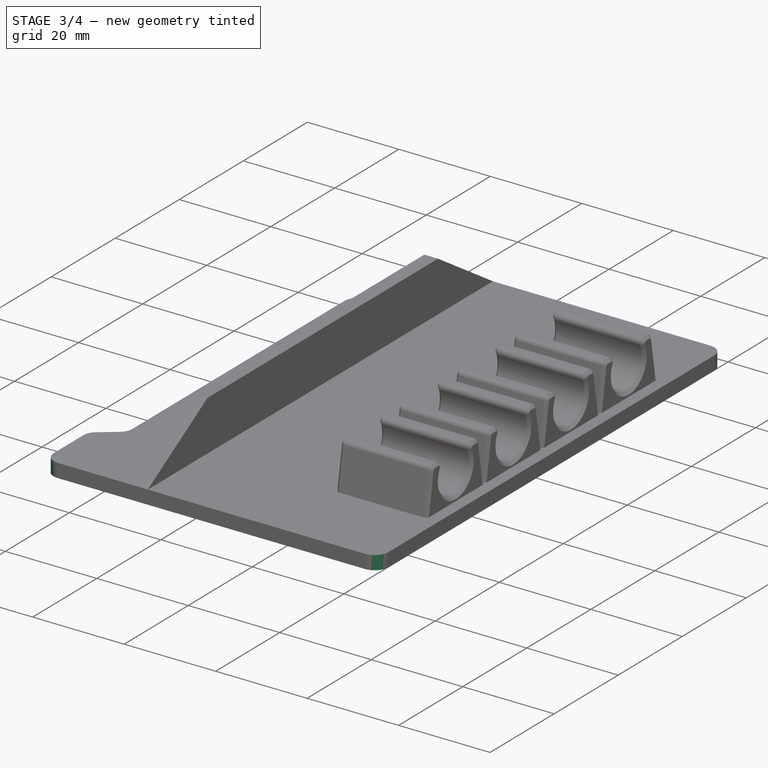
[diagram: stage 3 of 4 — iso view after this stage's code; geometry added in this stage tinted green]
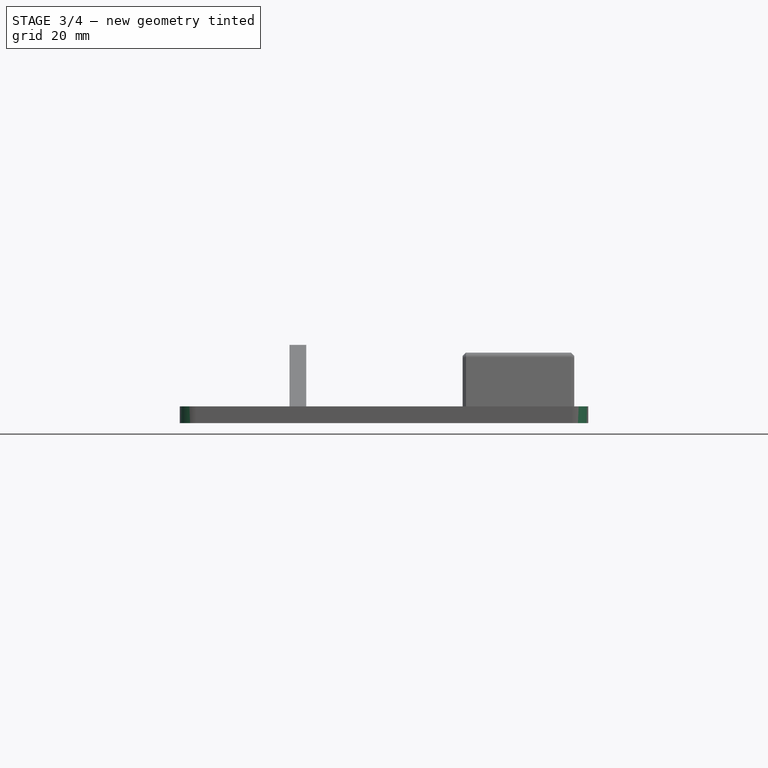
[diagram: stage 3 of 4 — front view after this stage's code; geometry added in this stage tinted green]
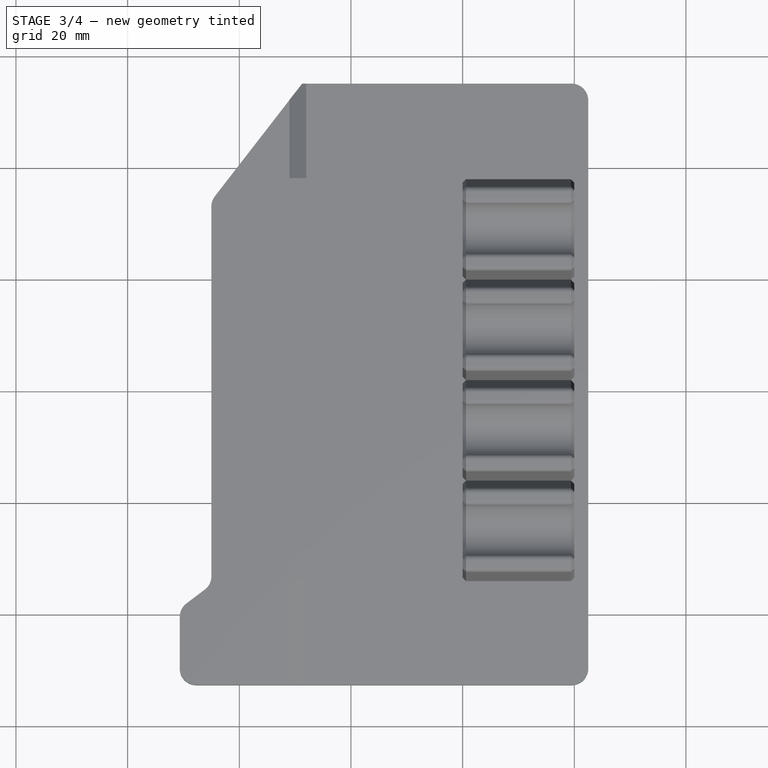
[diagram: stage 3 of 4 — top view after this stage's code; geometry added in this stage tinted green]
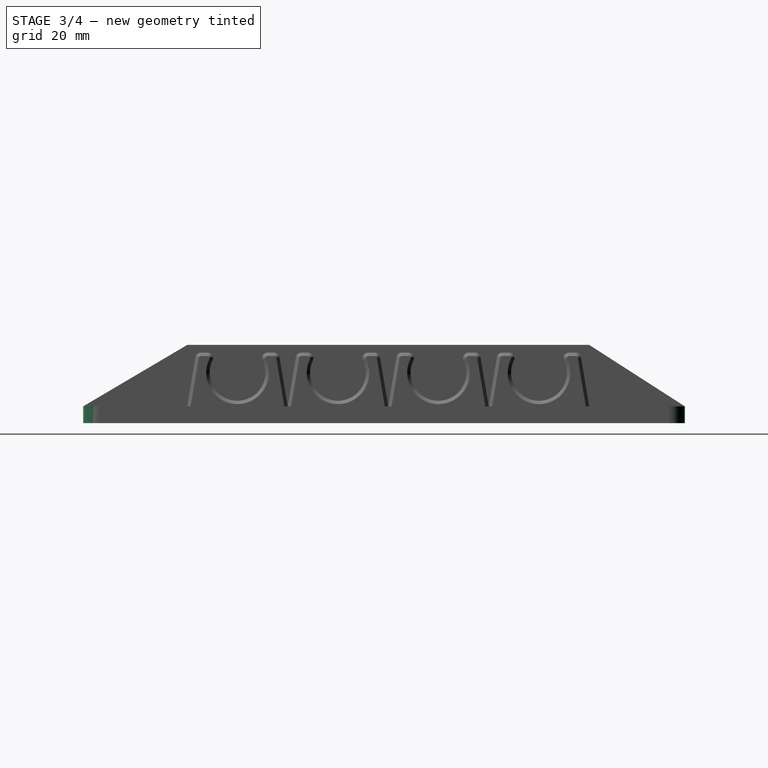
[diagram: stage 3 of 4 — right view after this stage's code; geometry added in this stage tinted green]
FEATURE [Sketcher::SketchObject] Sketch007
  ExternalGeometry = -> [Pad003]
  FullyConstrained = true
  MapMode = 5
  Placement = pos=(0,0,7e-16) rot=(0.707107,0.707107,0;3.14159rad)
  Support = -> [Pad003]
  sketch-geometry (3):
    g0: LineSegment StartX=37.1241 StartY=-27.188 StartZ=0 EndX=28.6725 EndY=-33.738 EndZ=0
    g1: LineSegment StartX=28.6725 StartY=-33.738 StartZ=0 EndX=37.1241 EndY=-33.738 EndZ=0
    g2: LineSegment StartX=37.1241 StartY=-33.738 StartZ=0 EndX=37.1241 EndY=-27.188 EndZ=0
  constraints (9):
    c: Coincident(g0,g1)
    c: Horizontal(g1)
    c: Coincident(g1,g2)
    c: Coincident(g2,g0)
    c: Vertical(g2)
    c: PointOnObject(g-3,g0)
    c: PointOnObject(g-3,g0)
    c: DistanceX(g-3,g0) = 2
    c: DistanceY(g0,g-3) = 5
FEATURE [PartDesign::Pocket] Pocket
  BaseFeature = -> Pad003
  Direction = (-3e-16,0,1)
  Length = 5
  Length2 = 5
  Placement = pos=(0,0,0) rot=(0.57735,0.57735,0.57735;2.0944rad)
  Profile = -> Sketch007
  ReferenceAxis = -> Sketch007 [N_Axis]
  Type = 1
FEATURE [PartDesign::Fillet] Fillet
  Base = -> Pocket [Edge117,Edge116,Edge119,Edge226,Edge339,Edge304]
  BaseFeature = -> Pocket
  Placement = pos=(0,0,0) rot=(0.57735,0.57735,0.57735;2.0944rad)
  Radius = 3
  SupportTransform = false
  UseAllEdges = false
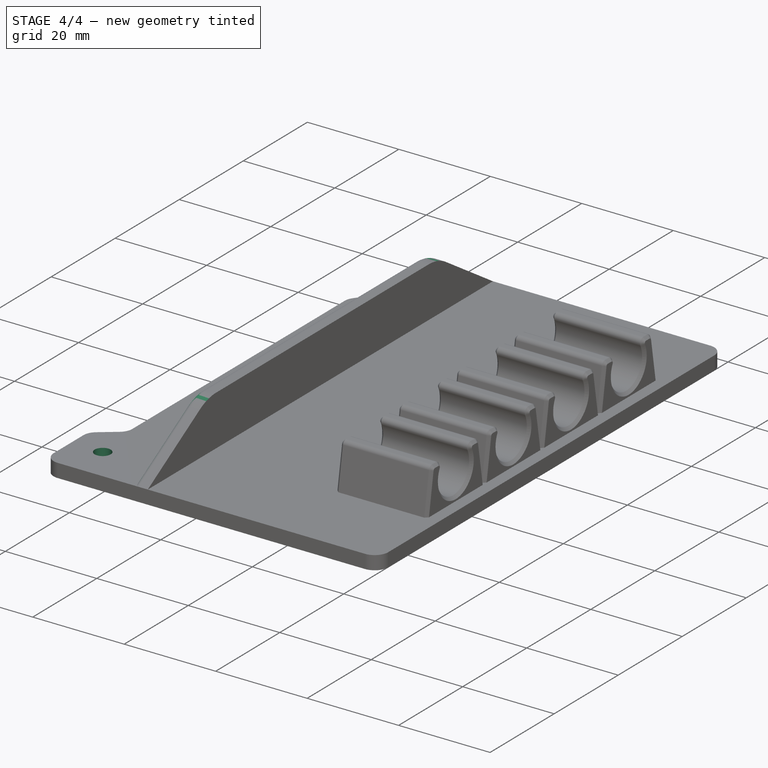
[diagram: stage 4 of 4 — iso view after this stage's code; geometry added in this stage tinted green]
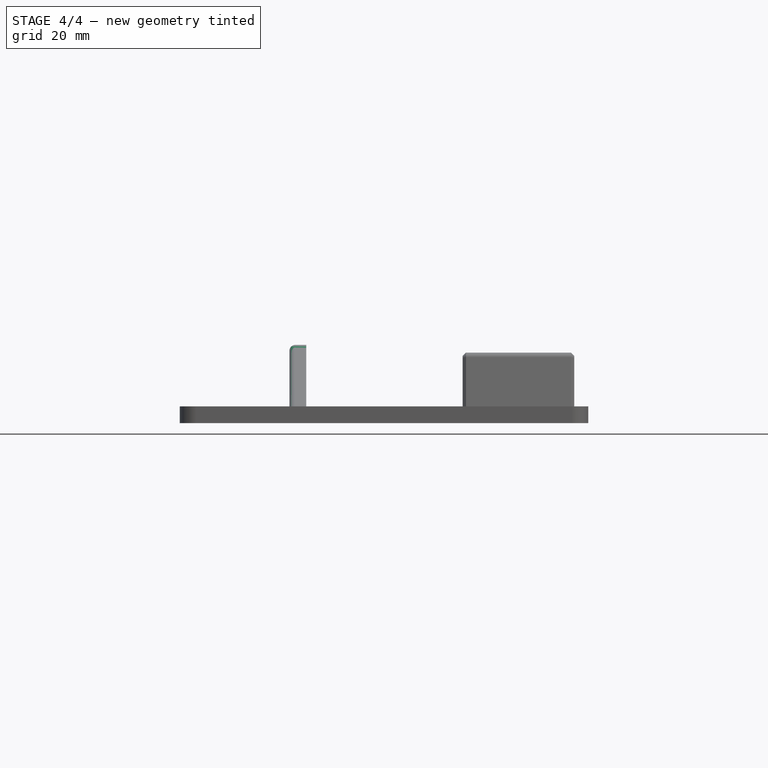
[diagram: stage 4 of 4 — front view after this stage's code; geometry added in this stage tinted green]
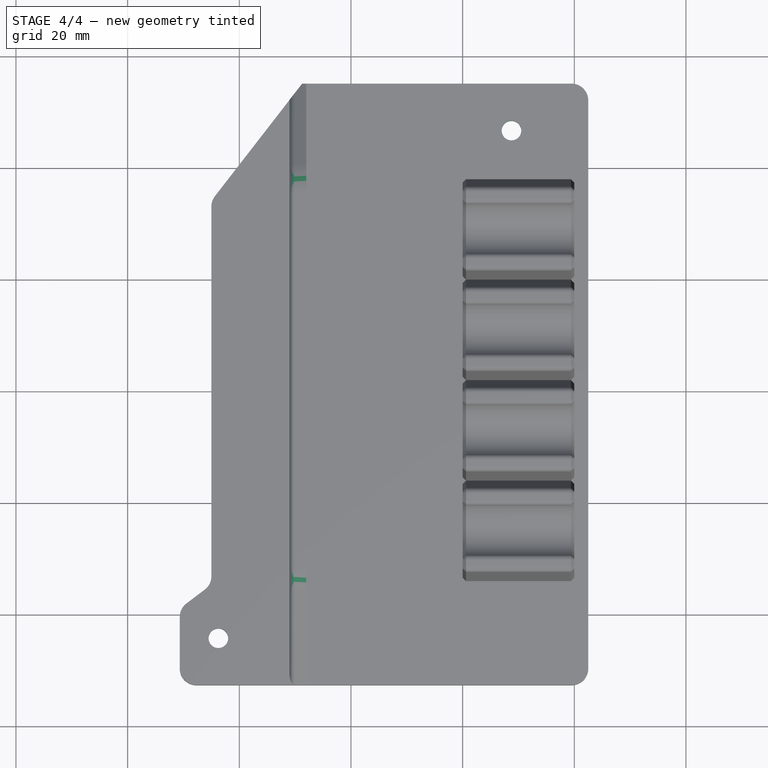
[diagram: stage 4 of 4 — top view after this stage's code; geometry added in this stage tinted green]
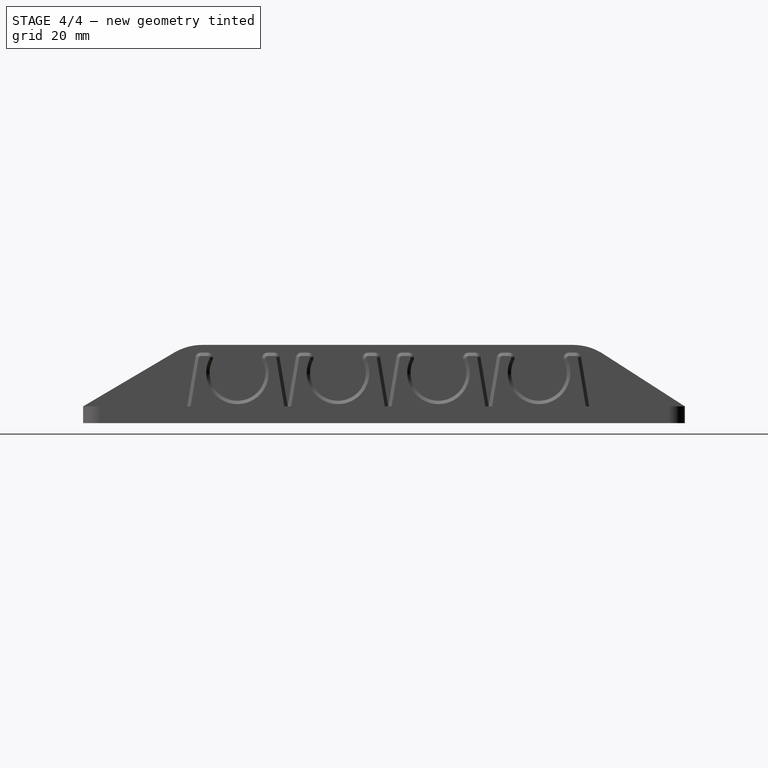
[diagram: stage 4 of 4 — right view after this stage's code; geometry added in this stage tinted green]
FEATURE [PartDesign::Fillet] Fillet001
  Base = -> Fillet [Edge136,Edge130]
  BaseFeature = -> Fillet
  Placement = pos=(0,0,0) rot=(0.57735,0.57735,0.57735;2.0944rad)
  Radius = 10
  SupportTransform = false
  UseAllEdges = false
FEATURE [PartDesign::Fillet] Fillet002
  Base = -> Fillet001 [Edge168,Edge173,Edge174,Edge289,Edge291,Edge165,Edge48,Edge10,Edge9,Edge7]
  BaseFeature = -> Fillet001
  Placement = pos=(0,0,0) rot=(0.57735,0.57735,0.57735;2.0944rad)
  Radius = 1
  SupportTransform = false
  UseAllEdges = false
FEATURE [PartDesign::Hole] Hole
  BaseFeature = -> Fillet002
  CustomThreadClearance = 0
  Depth = 264.623
  DepthType = 1
  Diameter = 3.5
  DrillForDepth = false
  DrillPoint = 1
  DrillPointAngle = 118
  HoleCutCountersinkAngle = 90
  HoleCutCustomValues = false
  HoleCutDepth = 0
  HoleCutDiameter = 6.1
  HoleCutType = 0
  ModelThread = false
  Placement = pos=(0,0,0) rot=(0.57735,0.57735,0.57735;2.0944rad)
  Profile = -> Binder001
  Tapered = false
  TaperedAngle = 90
  ThreadClass = 0
  ThreadDepth = 264.623
  ThreadDepthType = 0
  ThreadDirection = 0
  ThreadFit = 0
  ThreadSize = 0
  ThreadType = 0
  Threaded = false
  UseCustomThreadClearance = false
FEATURE [PartDesign::Body] Body  label="SDS Clip Body"
  Group = -> [Sketch,Pad,Sketch001,Chamfer,Pad001,LinearPattern,Sketch002,Sketch003,Sketch004,Sketch005,Binder,Pad002,Binder001,Sketch006,Pad003,Sketch007,Pocket,Fillet,Fillet001,Fillet002,Hole]
  Origin = -> Origin
  Tip = -> Hole
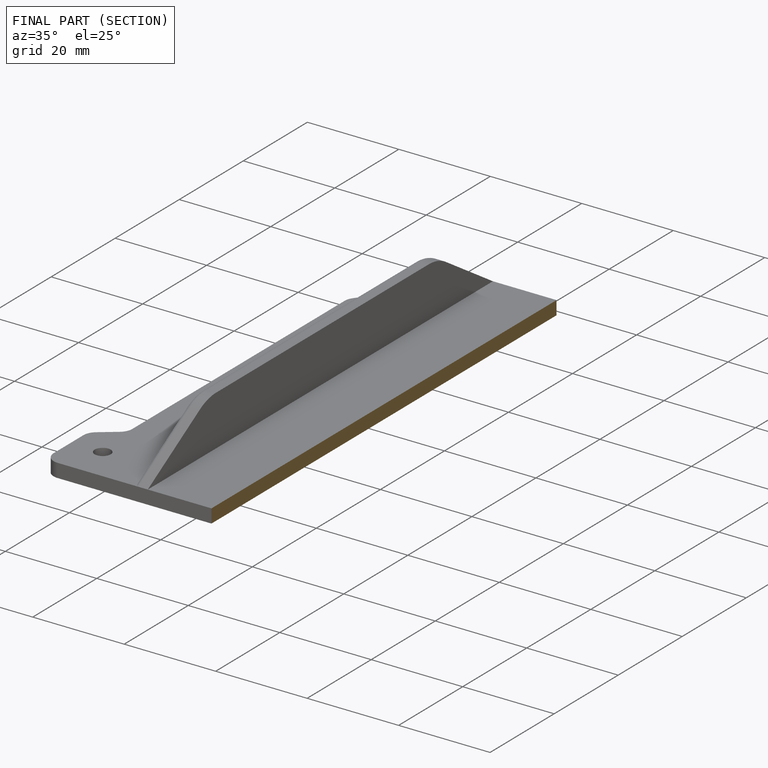
[diagram: finished part — half-section view (interior)]
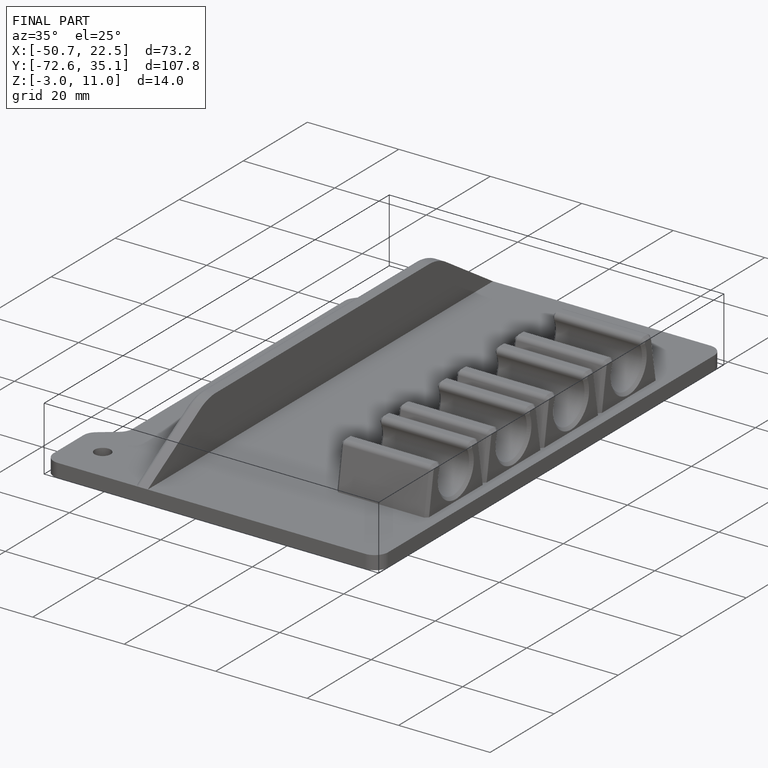
[diagram: finished part — iso view with bounding-box wireframe]
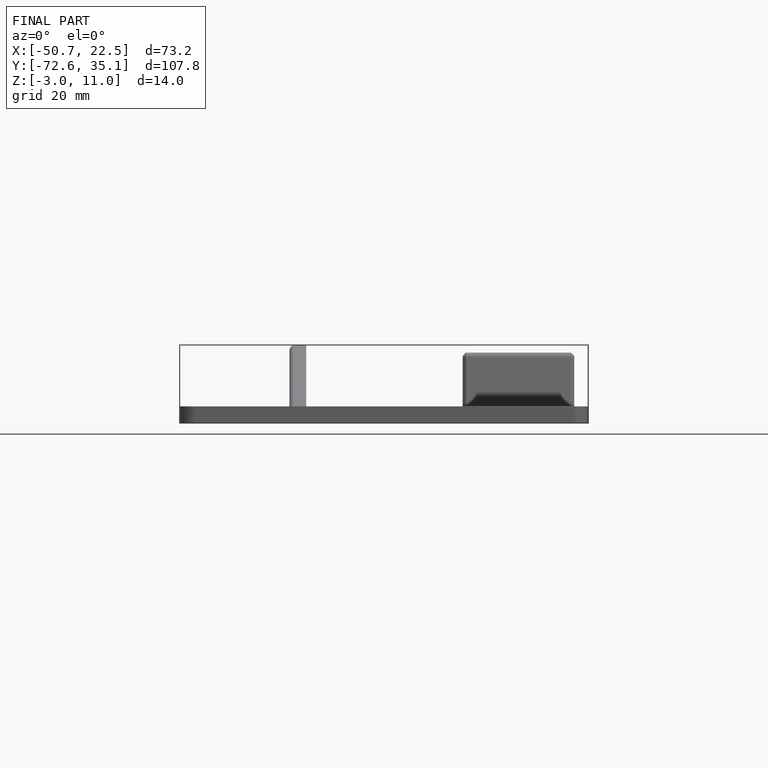
[diagram: finished part — front view with bounding-box wireframe]
